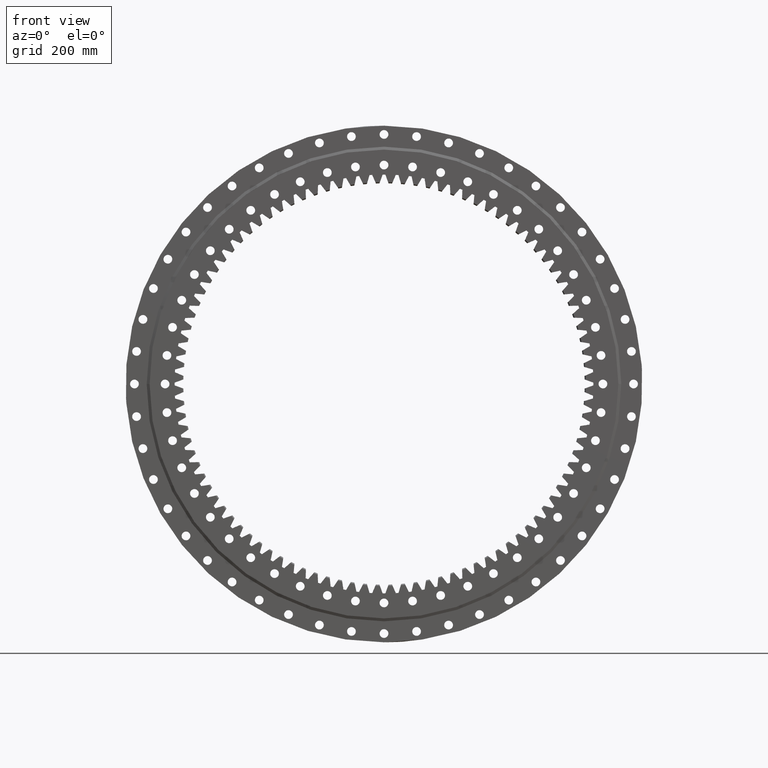
[diagram: clean part render]
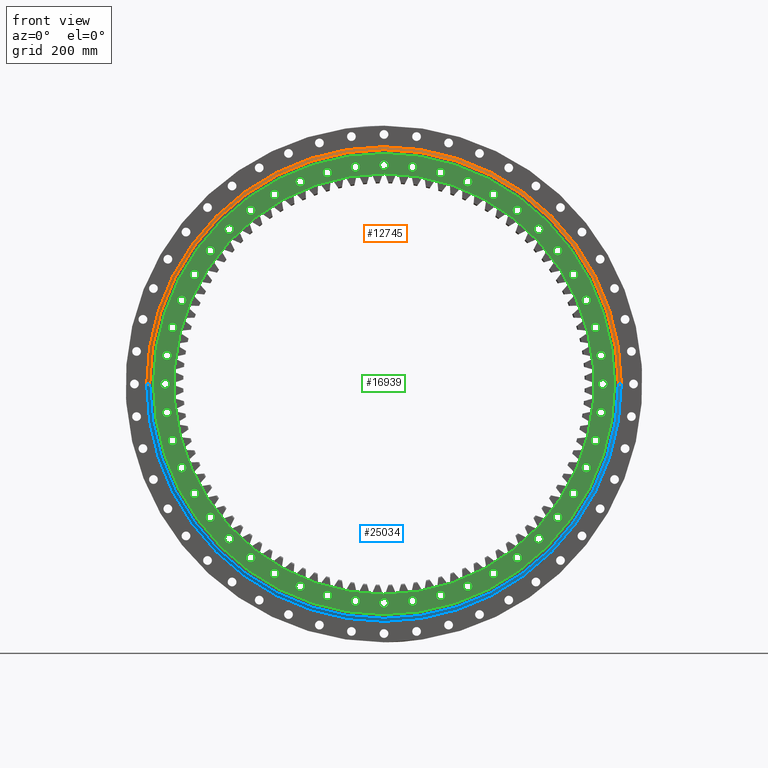
[diagram: same view with three faces highlighted in distinct colors, each labeled with its STEP entity id]
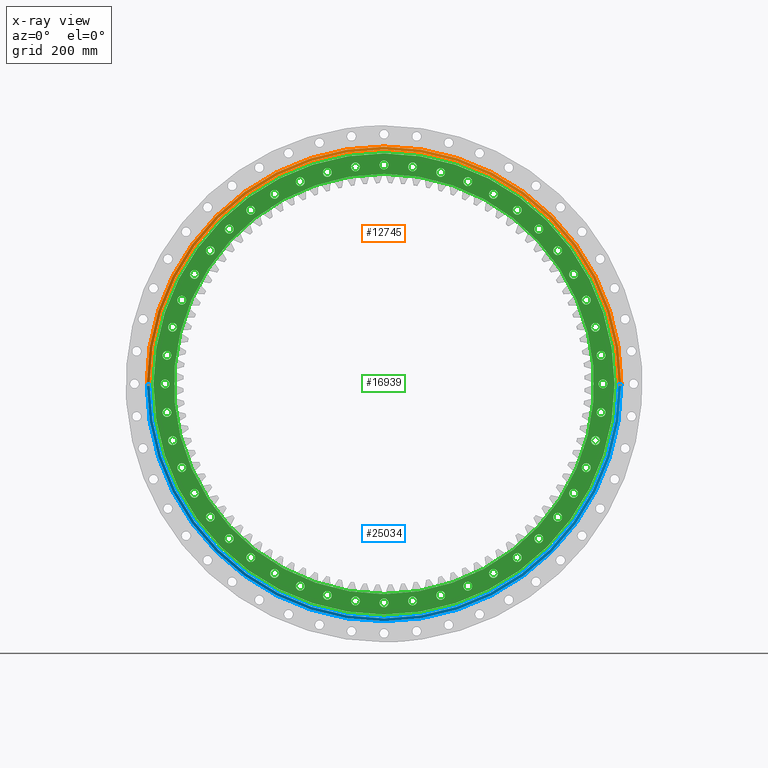
[diagram: x-ray of the same camera — body ghosted, the three highlighted faces saturated]
A machine part, front view with three faces highlighted in distinct colors.
The next image is the same camera in x-ray (body ghosted, the three faces saturated) — at least one of them is partly hidden behind the body in this view.
Their STEP definitions:

[orange] entity #12745 — the highlighted conical surface has half-angle 63.206 deg.
#53 = CARTESIAN_POINT ( 'NONE',  ( -803.0000000000001100, -55.04999999999986900, 0.0000000000000000000 ) ) ;
#994 = EDGE_CURVE ( 'NONE', #5629, #26983, #25047, .T. ) ;
#1266 = CARTESIAN_POINT ( 'NONE',  ( -1.300212179050019300E-014, -50.00000000000017100, 0.0000000000000000000 ) ) ;
#1628 = DIRECTION ( 'NONE',  ( 0.8926347946143788900, 0.4507805712802469600, 1.093162344032054000E-016 ) ) ;
#1980 = CARTESIAN_POINT ( 'NONE',  ( 803.0000000000001100, -55.05000000000016100, 9.833913797153247500E-014 ) ) ;
#2366 = CARTESIAN_POINT ( 'NONE',  ( -803.0000000000001100, -55.04999999999986900, 0.0000000000000000000 ) ) ;
#2783 = CIRCLE ( 'NONE', #9675, 803.0000000000001100 ) ;
#3685 = DIRECTION ( 'NONE',  ( -1.000000000000000000, 1.877683467231968000E-016, 0.0000000000000000000 ) ) ;
#4057 = VERTEX_POINT ( 'NONE', #2366 ) ;
#4517 = EDGE_CURVE ( 'NONE', #4057, #22538, #31392, .T. ) ;
#4751 = CONICAL_SURFACE ( 'NONE', #12086, 803.0000000000001100, 1.103156723031680100 ) ;
#4819 = VECTOR ( 'NONE', #14439, 1000.000000000000100 ) ;
#5629 = VERTEX_POINT ( 'NONE', #22776 ) ;
#8230 = DIRECTION ( 'NONE',  ( 1.836909530733565900E-016, 1.000000000000000000, -0.0000000000000000000 ) ) ;
#9274 = CIRCLE ( 'NONE', #10346, 813.0000000000001100 ) ;
#9675 = AXIS2_PLACEMENT_3D ( 'NONE', #22725, #8230, #25157 ) ;
#10346 = AXIS2_PLACEMENT_3D ( 'NONE', #1266, #18225, #3685 ) ;
#10548 = ORIENTED_EDGE ( 'NONE', *, *, #21753, .F. ) ;
#11979 = ORIENTED_EDGE ( 'NONE', *, *, #4517, .F. ) ;
#12086 = AXIS2_PLACEMENT_3D ( 'NONE', #20136, #23977, #28259 ) ;
#12745 = ADVANCED_FACE ( 'NONE', ( #18409 ), #4751, .T. ) ;
#14439 = DIRECTION ( 'NONE',  ( -0.8926347946143786700, 0.4507805712802473400, 0.0000000000000000000 ) ) ;
#17871 = VECTOR ( 'NONE', #1628, 999.9999999999998900 ) ;
#18225 = DIRECTION ( 'NONE',  ( 1.836909530733565900E-016, 1.000000000000000000, -0.0000000000000000000 ) ) ;
#18409 = FACE_OUTER_BOUND ( 'NONE', #29069, .T. ) ;
#19856 = EDGE_CURVE ( 'NONE', #4057, #5629, #2783, .T. ) ;
#20136 = CARTESIAN_POINT ( 'NONE',  ( -1.392976110352061400E-014, -55.05000000000001800, 0.0000000000000000000 ) ) ;
#21753 = EDGE_CURVE ( 'NONE', #22538, #26983, #9274, .T. ) ;
#22538 = VERTEX_POINT ( 'NONE', #24503 ) ;
#22725 = CARTESIAN_POINT ( 'NONE',  ( -1.392976110352061400E-014, -55.05000000000001800, 0.0000000000000000000 ) ) ;
#22776 = CARTESIAN_POINT ( 'NONE',  ( 803.0000000000001100, -55.05000000000016100, 9.895146137110616400E-014 ) ) ;
#23164 = ORIENTED_EDGE ( 'NONE', *, *, #994, .T. ) ;
#23977 = DIRECTION ( 'NONE',  ( 1.836909530733565900E-016, 1.000000000000000000, -0.0000000000000000000 ) ) ;
#24351 = ORIENTED_EDGE ( 'NONE', *, *, #19856, .T. ) ;
#24503 = CARTESIAN_POINT ( 'NONE',  ( -813.0000000000001100, -50.00000000000001400, 0.0000000000000000000 ) ) ;
#25047 = LINE ( 'NONE', #1980, #17871 ) ;
#25157 = DIRECTION ( 'NONE',  ( -1.000000000000000000, 1.814654694670632400E-016, 0.0000000000000000000 ) ) ;
#26983 = VERTEX_POINT ( 'NONE', #30984 ) ;
#28259 = DIRECTION ( 'NONE',  ( -1.000000000000000000, 1.814654694670632400E-016, 0.0000000000000000000 ) ) ;
#29069 = EDGE_LOOP ( 'NONE', ( #24351, #23164, #10548, #11979 ) ) ;
#30984 = CARTESIAN_POINT ( 'NONE',  ( 813.0000000000001100, -50.00000000000032000, 9.956378477067982700E-014 ) ) ;
#31392 = LINE ( 'NONE', #53, #4819 ) ;

[blue] entity #25034 — the highlighted conical surface has half-angle 63.206 deg.
#53 = CARTESIAN_POINT ( 'NONE',  ( -803.0000000000001100, -55.04999999999986900, 0.0000000000000000000 ) ) ;
#994 = EDGE_CURVE ( 'NONE', #5629, #26983, #25047, .T. ) ;
#1037 = DIRECTION ( 'NONE',  ( -1.000000000000000000, 1.814654694670632400E-016, 0.0000000000000000000 ) ) ;
#1628 = DIRECTION ( 'NONE',  ( 0.8926347946143788900, 0.4507805712802469600, 1.093162344032054000E-016 ) ) ;
#1980 = CARTESIAN_POINT ( 'NONE',  ( 803.0000000000001100, -55.05000000000016100, 9.833913797153247500E-014 ) ) ;
#2080 = DIRECTION ( 'NONE',  ( -1.000000000000000000, 1.877683467231968000E-016, 0.0000000000000000000 ) ) ;
#2366 = CARTESIAN_POINT ( 'NONE',  ( -803.0000000000001100, -55.04999999999986900, 0.0000000000000000000 ) ) ;
#2456 = DIRECTION ( 'NONE',  ( 1.836909530733565900E-016, 1.000000000000000000, -0.0000000000000000000 ) ) ;
#2947 = ORIENTED_EDGE ( 'NONE', *, *, #10310, .T. ) ;
#3471 = CARTESIAN_POINT ( 'NONE',  ( -1.300212179050019300E-014, -50.00000000000017100, 0.0000000000000000000 ) ) ;
#4057 = VERTEX_POINT ( 'NONE', #2366 ) ;
#4517 = EDGE_CURVE ( 'NONE', #4057, #22538, #31392, .T. ) ;
#4819 = VECTOR ( 'NONE', #14439, 1000.000000000000100 ) ;
#5629 = VERTEX_POINT ( 'NONE', #22776 ) ;
#5820 = DIRECTION ( 'NONE',  ( 1.836909530733565900E-016, 1.000000000000000000, -0.0000000000000000000 ) ) ;
#6033 = DIRECTION ( 'NONE',  ( -1.000000000000000000, 1.814654694670632400E-016, 0.0000000000000000000 ) ) ;
#6136 = CARTESIAN_POINT ( 'NONE',  ( -1.392976110352061400E-014, -55.05000000000001800, 0.0000000000000000000 ) ) ;
#9463 = CIRCLE ( 'NONE', #13841, 803.0000000000001100 ) ;
#10310 = EDGE_CURVE ( 'NONE', #5629, #4057, #9463, .T. ) ;
#13299 = ORIENTED_EDGE ( 'NONE', *, *, #4517, .T. ) ;
#13841 = AXIS2_PLACEMENT_3D ( 'NONE', #6136, #5820, #6033 ) ;
#14439 = DIRECTION ( 'NONE',  ( -0.8926347946143786700, 0.4507805712802473400, 0.0000000000000000000 ) ) ;
#14538 = ORIENTED_EDGE ( 'NONE', *, *, #16175, .F. ) ;
#15574 = CARTESIAN_POINT ( 'NONE',  ( -1.392976110352061400E-014, -55.05000000000001800, 0.0000000000000000000 ) ) ;
#16175 = EDGE_CURVE ( 'NONE', #26983, #22538, #23013, .T. ) ;
#17871 = VECTOR ( 'NONE', #1628, 999.9999999999998900 ) ;
#18115 = DIRECTION ( 'NONE',  ( 1.836909530733565900E-016, 1.000000000000000000, -0.0000000000000000000 ) ) ;
#18420 = EDGE_LOOP ( 'NONE', ( #25182, #2947, #13299, #14538 ) ) ;
#20940 = AXIS2_PLACEMENT_3D ( 'NONE', #15574, #18115, #1037 ) ;
#22538 = VERTEX_POINT ( 'NONE', #24503 ) ;
#22776 = CARTESIAN_POINT ( 'NONE',  ( 803.0000000000001100, -55.05000000000016100, 9.895146137110616400E-014 ) ) ;
#23013 = CIRCLE ( 'NONE', #29479, 813.0000000000001100 ) ;
#24503 = CARTESIAN_POINT ( 'NONE',  ( -813.0000000000001100, -50.00000000000001400, 0.0000000000000000000 ) ) ;
#25034 = ADVANCED_FACE ( 'NONE', ( #28318 ), #26794, .T. ) ;
#25047 = LINE ( 'NONE', #1980, #17871 ) ;
#25182 = ORIENTED_EDGE ( 'NONE', *, *, #994, .F. ) ;
#26794 = CONICAL_SURFACE ( 'NONE', #20940, 803.0000000000001100, 1.103156723031680100 ) ;
#26983 = VERTEX_POINT ( 'NONE', #30984 ) ;
#28318 = FACE_OUTER_BOUND ( 'NONE', #18420, .T. ) ;
#29479 = AXIS2_PLACEMENT_3D ( 'NONE', #3471, #2456, #2080 ) ;
#30984 = CARTESIAN_POINT ( 'NONE',  ( 813.0000000000001100, -50.00000000000032000, 9.956378477067982700E-014 ) ) ;
#31392 = LINE ( 'NONE', #53, #4819 ) ;

[green] entity #16939 — the highlighted planar face has unit normal (0, 1, -0).
#3 = VERTEX_POINT ( 'NONE', #12728 ) ;
#18 = CARTESIAN_POINT ( 'NONE',  ( 5.545662449571557400E-012, -74.99999999999997200, -735.0000000000000000 ) ) ;
#63 = AXIS2_PLACEMENT_3D ( 'NONE', #22168, #22105, #22101 ) ;
#85 = CIRCLE ( 'NONE', #30664, 14.99999999999997900 ) ;
#97 = DIRECTION ( 'NONE',  ( 0.8660254037844359300, 0.0000000000000000000, -0.5000000000000045500 ) ) ;
#131 = DIRECTION ( 'NONE',  ( -7.038473828917530800E-015, 0.0000000000000000000, -1.000000000000000000 ) ) ;
#141 = AXIS2_PLACEMENT_3D ( 'NONE', #17683, #3146, #20109 ) ;
#198 = DIRECTION ( 'NONE',  ( -7.914688832368751900E-017, -1.000000000000000000, 6.617654413443253200E-017 ) ) ;
#270 = DIRECTION ( 'NONE',  ( -7.914688832368751900E-017, -1.000000000000000000, 6.617654413443253200E-017 ) ) ;
#284 = AXIS2_PLACEMENT_3D ( 'NONE', #410, #17368, #2831 ) ;
#288 = VERTEX_POINT ( 'NONE', #1679 ) ;
#303 = CARTESIAN_POINT ( 'NONE',  ( 5.539883101782857500E-012, -74.99999999999997200, -750.0000000000000000 ) ) ;
#395 = VERTEX_POINT ( 'NONE', #30993 ) ;
#410 = CARTESIAN_POINT ( 'NONE',  ( -649.5190528383300300, -74.99999999999982900, 374.9999999999982400 ) ) ;
#424 = VERTEX_POINT ( 'NONE', #10692 ) ;
#436 = DIRECTION ( 'NONE',  ( -0.9238795325112907400, 0.0000000000000000000, -0.3826834323650801800 ) ) ;
#472 = DIRECTION ( 'NONE',  ( -0.4999999999999901700, 0.0000000000000000000, 0.8660254037844442600 ) ) ;
#494 = DIRECTION ( 'NONE',  ( -7.914688832368751900E-017, -1.000000000000000000, 6.617654413443253200E-017 ) ) ;
#527 = CARTESIAN_POINT ( 'NONE',  ( -692.9096493834639400, -74.99999999999988600, -287.0125742738202900 ) ) ;
#535 = VERTEX_POINT ( 'NONE', #14480 ) ;
#625 = ORIENTED_EDGE ( 'NONE', *, *, #11790, .F. ) ;
#637 = CIRCLE ( 'NONE', #6757, 14.99999999999998000 ) ;
#649 = CARTESIAN_POINT ( 'NONE',  ( -287.0125742738179000, -74.99999999999984400, 707.9096493834648500 ) ) ;
#657 = CIRCLE ( 'NONE', #3885, 15.00000000000003000 ) ;
#660 = CARTESIAN_POINT ( 'NONE',  ( -530.3300858899118600, -74.99999999999984400, 530.3300858899094700 ) ) ;
#669 = FACE_BOUND ( 'NONE', #25518, .T. ) ;
#693 = EDGE_CURVE ( 'NONE', #21278, #20615, #17523, .T. ) ;
#698 = VERTEX_POINT ( 'NONE', #17169 ) ;
#717 = DIRECTION ( 'NONE',  ( 0.9238795325112880700, 0.0000000000000000000, 0.3826834323650865100 ) ) ;
#730 = AXIS2_PLACEMENT_3D ( 'NONE', #14798, #270, #17240 ) ;
#741 = CARTESIAN_POINT ( 'NONE',  ( 724.4443697167990900, -74.99999999999997200, 179.1142838268989100 ) ) ;
#748 = VERTEX_POINT ( 'NONE', #14016 ) ;
#757 = ORIENTED_EDGE ( 'NONE', *, *, #31205, .F. ) ;
#811 = AXIS2_PLACEMENT_3D ( 'NONE', #7036, #23954, #9475 ) ;
#849 = CARTESIAN_POINT ( 'NONE',  ( -287.0125742738179000, -74.99999999999984400, 692.9096493834648500 ) ) ;
#898 = CARTESIAN_POINT ( 'NONE',  ( 724.4443697167990900, -74.99999999999997200, 194.1142838268989100 ) ) ;
#911 = CARTESIAN_POINT ( 'NONE',  ( 649.5190528383244600, -74.99999999999994300, 375.0000000000078400 ) ) ;
#942 = CARTESIAN_POINT ( 'NONE',  ( -1.078897714329611000E-011, -74.99999999999987200, 750.0000000000000000 ) ) ;
#946 = AXIS2_PLACEMENT_3D ( 'NONE', #12156, #12076, #11973 ) ;
#949 = CIRCLE ( 'NONE', #26676, 15.00000000000000700 ) ;
#963 = DIRECTION ( 'NONE',  ( 0.9659258262890693100, 0.0000000000000000000, 0.2588190451025165200 ) ) ;
#965 = CIRCLE ( 'NONE', #8635, 15.00000000000000500 ) ;
#967 = DIRECTION ( 'NONE',  ( -7.914688832368751900E-017, -1.000000000000000000, 6.617654413443253200E-017 ) ) ;
#991 = CARTESIAN_POINT ( 'NONE',  ( -194.1142838268913200, -74.99999999999985800, 724.4443697168010200 ) ) ;
#1011 = CARTESIAN_POINT ( 'NONE',  ( -649.5190528383269600, -74.99999999999990100, -390.0000000000033000 ) ) ;
#1017 = ORIENTED_EDGE ( 'NONE', *, *, #1364, .F. ) ;
#1053 = DIRECTION ( 'NONE',  ( -7.914688832368751900E-017, -1.000000000000000000, 6.617654413443253200E-017 ) ) ;
#1078 = EDGE_LOOP ( 'NONE', ( #26895, #21984 ) ) ;
#1121 = CARTESIAN_POINT ( 'NONE',  ( 456.5710717565457300, -75.00000000000000000, -580.0150052184222900 ) ) ;
#1276 = EDGE_CURVE ( 'NONE', #2131, #15050, #23127, .T. ) ;
#1315 = VERTEX_POINT ( 'NONE', #16151 ) ;
#1330 = EDGE_CURVE ( 'NONE', #8081, #15425, #9535, .T. ) ;
#1364 = EDGE_CURVE ( 'NONE', #17643, #31026, #14465, .T. ) ;
#1399 = VERTEX_POINT ( 'NONE', #10596 ) ;
#1421 = FACE_BOUND ( 'NONE', #22118, .T. ) ;
#1436 = CARTESIAN_POINT ( 'NONE',  ( 287.0125742738230200, -75.00000000000000000, -677.9096493834626900 ) ) ;
#1474 = AXIS2_PLACEMENT_3D ( 'NONE', #5968, #5906, #5809 ) ;
#1518 = DIRECTION ( 'NONE',  ( -7.914688832368751900E-017, -1.000000000000000000, 6.617654413443253200E-017 ) ) ;
#1532 = CIRCLE ( 'NONE', #6318, 15.00000000000000700 ) ;
#1544 = DIRECTION ( 'NONE',  ( 0.2588190451025148000, 0.0000000000000000000, -0.9659258262890699800 ) ) ;
#1595 = AXIS2_PLACEMENT_3D ( 'NONE', #15903, #18041, #16372 ) ;
#1679 = CARTESIAN_POINT ( 'NONE',  ( -724.4443697168003400, -74.99999999999987200, -209.1142838268938000 ) ) ;
#1706 = ORIENTED_EDGE ( 'NONE', *, *, #20029, .F. ) ;
#1758 = DIRECTION ( 'NONE',  ( -0.3826834323650986100, 0.0000000000000000000, -0.9238795325112830700 ) ) ;
#1796 = CARTESIAN_POINT ( 'NONE',  ( 743.5836460303567000, -74.99999999999997200, 82.89464416504702600 ) ) ;
#1805 = VERTEX_POINT ( 'NONE', #29082 ) ;
#1858 = VERTEX_POINT ( 'NONE', #19397 ) ;
#1872 = DIRECTION ( 'NONE',  ( -7.914688832368751900E-017, -1.000000000000000000, 6.617654413443253200E-017 ) ) ;
#1899 = DIRECTION ( 'NONE',  ( 0.9659258262890693100, 0.0000000000000000000, 0.2588190451025165200 ) ) ;
#1989 = DIRECTION ( 'NONE',  ( -0.4999999999999901700, 0.0000000000000000000, 0.8660254037844442600 ) ) ;
#2112 = EDGE_CURVE ( 'NONE', #31026, #17643, #4585, .T. ) ;
#2131 = VERTEX_POINT ( 'NONE', #8744 ) ;
#2149 = AXIS2_PLACEMENT_3D ( 'NONE', #16764, #15893, #15759 ) ;
#2189 = FACE_BOUND ( 'NONE', #27383, .T. ) ;
#2232 = EDGE_CURVE ( 'NONE', #28862, #25272, #13693, .T. ) ;
#2239 = DIRECTION ( 'NONE',  ( 0.9238795325112844100, 0.0000000000000000000, -0.3826834323650953900 ) ) ;
#2270 = CARTESIAN_POINT ( 'NONE',  ( -97.89464416503341200, -74.99999999999995700, -743.5836460303585200 ) ) ;
#2279 = CARTESIAN_POINT ( 'NONE',  ( -1.078897714329611000E-011, -74.99999999999987200, 750.0000000000000000 ) ) ;
#2291 = VERTEX_POINT ( 'NONE', #6568 ) ;
#2364 = ORIENTED_EDGE ( 'NONE', *, *, #4264, .F. ) ;
#2410 = VERTEX_POINT ( 'NONE', #4116 ) ;
#2467 = CARTESIAN_POINT ( 'NONE',  ( 595.0150052184208100, -74.99999999999992900, 441.5710717565477800 ) ) ;
#2494 = AXIS2_PLACEMENT_3D ( 'NONE', #527, #494, #436 ) ;
#2495 = EDGE_LOOP ( 'NONE', ( #21544, #27965 ) ) ;
#2531 = ORIENTED_EDGE ( 'NONE', *, *, #2112, .F. ) ;
#2550 = FACE_BOUND ( 'NONE', #9641, .T. ) ;
#2582 = CARTESIAN_POINT ( 'NONE',  ( 649.5190528383244600, -74.99999999999994300, 375.0000000000078400 ) ) ;
#2600 = VERTEX_POINT ( 'NONE', #11455 ) ;
#2639 = ORIENTED_EDGE ( 'NONE', *, *, #15482, .F. ) ;
#2719 = CARTESIAN_POINT ( 'NONE',  ( -456.5710717565418700, -74.99999999999984400, 595.0150052184253600 ) ) ;
#2747 = EDGE_LOOP ( 'NONE', ( #7833, #18063 ) ) ;
#2831 = DIRECTION ( 'NONE',  ( -0.8660254037844328200, 0.0000000000000000000, 0.5000000000000101000 ) ) ;
#2843 = DIRECTION ( 'NONE',  ( 0.7933533402912347200, 0.0000000000000000000, 0.6087614290087212100 ) ) ;
#2858 = DIRECTION ( 'NONE',  ( -7.914688832368751900E-017, -1.000000000000000000, 6.617654413443253200E-017 ) ) ;
#2913 = DIRECTION ( 'NONE',  ( -7.914688832368751900E-017, -1.000000000000000000, 6.617654413443253200E-017 ) ) ;
#2944 = CARTESIAN_POINT ( 'NONE',  ( -1.078670010024307200E-011, -74.99999999999987200, 735.0000000000000000 ) ) ;
#2965 = EDGE_LOOP ( 'NONE', ( #27263, #8714 ) ) ;
#3029 = CARTESIAN_POINT ( 'NONE',  ( -97.89464416503953700, -74.99999999999985800, 758.5836460303576100 ) ) ;
#3055 = EDGE_CURVE ( 'NONE', #1805, #19516, #19704, .T. ) ;
#3098 = DIRECTION ( 'NONE',  ( -0.7071067811865364700, 0.0000000000000000000, 0.7071067811865586700 ) ) ;
#3102 = DIRECTION ( 'NONE',  ( -7.038473828917530800E-015, 0.0000000000000000000, -1.000000000000000000 ) ) ;
#3134 = EDGE_CURVE ( 'NONE', #6331, #25031, #7600, .T. ) ;
#3146 = DIRECTION ( 'NONE',  ( -7.914688832368751900E-017, -1.000000000000000000, 6.617654413443253200E-017 ) ) ;
#3170 = EDGE_CURVE ( 'NONE', #9935, #22549, #18186, .T. ) ;
#3183 = CIRCLE ( 'NONE', #14729, 790.0000000000000000 ) ;
#3192 = DIRECTION ( 'NONE',  ( -7.914688832368751900E-017, -1.000000000000000000, 6.617654413443253200E-017 ) ) ;
#3209 = CARTESIAN_POINT ( 'NONE',  ( 595.0150052184208100, -74.99999999999992900, 456.5710717565478400 ) ) ;
#3220 = CARTESIAN_POINT ( 'NONE',  ( 375.0000000000055700, -74.99999999999998600, -634.5190528383258200 ) ) ;
#3268 = DIRECTION ( 'NONE',  ( -0.3826834323650770100, 0.0000000000000000000, 0.9238795325112920700 ) ) ;
#3279 = CARTESIAN_POINT ( 'NONE',  ( 97.89464416502821100, -74.99999999999988600, 758.5836460303592000 ) ) ;
#3302 = FACE_BOUND ( 'NONE', #17866, .T. ) ;
#3309 = EDGE_CURVE ( 'NONE', #28785, #22260, #3755, .T. ) ;
#3317 = ORIENTED_EDGE ( 'NONE', *, *, #16811, .F. ) ;
#3329 = CARTESIAN_POINT ( 'NONE',  ( -750.0000000000000000, -74.99999999999987200, 14.99999999999706400 ) ) ;
#3338 = DIRECTION ( 'NONE',  ( 0.8660254037844392600, 0.0000000000000000000, 0.4999999999999990000 ) ) ;
#3374 = DIRECTION ( 'NONE',  ( 5.551115123120728400E-017, 0.0000000000000000000, 1.000000000000000000 ) ) ;
#3392 = ORIENTED_EDGE ( 'NONE', *, *, #11087, .F. ) ;
#3399 = DIRECTION ( 'NONE',  ( -1.000000000000000000, 0.0000000000000000000, 1.052995516776064100E-014 ) ) ;
#3406 = DIRECTION ( 'NONE',  ( -7.914688832368751900E-017, -1.000000000000000000, 6.617654413443253200E-017 ) ) ;
#3424 = DIRECTION ( 'NONE',  ( -0.2588190451025079200, 0.0000000000000000000, 0.9659258262890717500 ) ) ;
#3441 = CARTESIAN_POINT ( 'NONE',  ( -750.0000000000000000, -74.99999999999987200, -2.922244873464701800E-012 ) ) ;
#3446 = DIRECTION ( 'NONE',  ( -0.7071067811865364700, 0.0000000000000000000, 0.7071067811865586700 ) ) ;
#3527 = DIRECTION ( 'NONE',  ( -7.914688832368751900E-017, -1.000000000000000000, 6.617654413443253200E-017 ) ) ;
#3550 = CARTESIAN_POINT ( 'NONE',  ( -530.3300858899118600, -74.99999999999984400, 530.3300858899094700 ) ) ;
#3591 = EDGE_CURVE ( 'NONE', #25031, #6331, #9063, .T. ) ;
#3636 = CIRCLE ( 'NONE', #9417, 14.99999999999994100 ) ;
#3657 = ORIENTED_EDGE ( 'NONE', *, *, #8912, .F. ) ;
#3677 = AXIS2_PLACEMENT_3D ( 'NONE', #3935, #20879, #6368 ) ;
#3686 = ORIENTED_EDGE ( 'NONE', *, *, #7916, .F. ) ;
#3691 = CARTESIAN_POINT ( 'NONE',  ( 530.3300858899154900, -75.00000000000000000, -545.3300858899057200 ) ) ;
#3755 = CIRCLE ( 'NONE', #21073, 14.99999999999995900 ) ;
#3793 = ORIENTED_EDGE ( 'NONE', *, *, #12980, .F. ) ;
#3803 = DIRECTION ( 'NONE',  ( -7.914688832368751900E-017, -1.000000000000000000, 6.617654413443253200E-017 ) ) ;
#3828 = CARTESIAN_POINT ( 'NONE',  ( -375.0000000000010200, -74.99999999999985800, 649.5190528383283200 ) ) ;
#3885 = AXIS2_PLACEMENT_3D ( 'NONE', #898, #967, #963 ) ;
#3886 = ORIENTED_EDGE ( 'NONE', *, *, #24512, .F. ) ;
#3935 = CARTESIAN_POINT ( 'NONE',  ( 456.5710717565457300, -75.00000000000000000, -595.0150052184222900 ) ) ;
#3999 = AXIS2_PLACEMENT_3D ( 'NONE', #30665, #30622, #30405 ) ;
#4045 = ORIENTED_EDGE ( 'NONE', *, *, #3134, .F. ) ;
#4060 = FACE_BOUND ( 'NONE', #25101, .T. ) ;
#4116 = CARTESIAN_POINT ( 'NONE',  ( 194.1142838268963800, -74.99999999999998600, -739.4443697167997700 ) ) ;
#4134 = CARTESIAN_POINT ( 'NONE',  ( 595.0150052184307000, -75.00000000000000000, -441.5710717565348200 ) ) ;
#4235 = CARTESIAN_POINT ( 'NONE',  ( 692.9096493834681500, -75.00000000000000000, -272.0125742738104600 ) ) ;
#4253 = VERTEX_POINT ( 'NONE', #4755 ) ;
#4264 = EDGE_CURVE ( 'NONE', #22245, #4357, #29492, .T. ) ;
#4314 = CARTESIAN_POINT ( 'NONE',  ( 375.0000000000055700, -74.99999999999998600, -649.5190528383258200 ) ) ;
#4357 = VERTEX_POINT ( 'NONE', #3220 ) ;
#4390 = CARTESIAN_POINT ( 'NONE',  ( 374.9999999999914700, -74.99999999999991500, 634.5190528383340100 ) ) ;
#4410 = DIRECTION ( 'NONE',  ( 0.4999999999999929500, 0.0000000000000000000, -0.8660254037844427000 ) ) ;
#4424 = EDGE_CURVE ( 'NONE', #12150, #11163, #657, .T. ) ;
#4440 = DIRECTION ( 'NONE',  ( -7.914688832368751900E-017, -1.000000000000000000, 6.617654413443251900E-017 ) ) ;
#4498 = DIRECTION ( 'NONE',  ( -7.914688832368751900E-017, -1.000000000000000000, 6.617654413443253200E-017 ) ) ;
#4510 = VERTEX_POINT ( 'NONE', #2944 ) ;
#4562 = ORIENTED_EDGE ( 'NONE', *, *, #18185, .F. ) ;
#4573 = CARTESIAN_POINT ( 'NONE',  ( -724.4443697168003400, -74.99999999999987200, -194.1142838268938000 ) ) ;
#4585 = CIRCLE ( 'NONE', #3999, 14.99999999999998800 ) ;
#4702 = DIRECTION ( 'NONE',  ( -0.1305261922200590700, 0.0000000000000000000, -0.9914448613738093800 ) ) ;
#4712 = DIRECTION ( 'NONE',  ( 5.551115123120728400E-017, 0.0000000000000000000, 1.000000000000000000 ) ) ;
#4755 = CARTESIAN_POINT ( 'NONE',  ( 194.1142838268805500, -74.99999999999988600, 739.4443697168038600 ) ) ;
#4757 = ORIENTED_EDGE ( 'NONE', *, *, #14153, .F. ) ;
#4823 = AXIS2_PLACEMENT_3D ( 'NONE', #22037, #7555, #24456 ) ;
#4835 = FACE_BOUND ( 'NONE', #7382, .T. ) ;
#4854 = ORIENTED_EDGE ( 'NONE', *, *, #28757, .F. ) ;
#4911 = VERTEX_POINT ( 'NONE', #17564 ) ;
#4928 = CARTESIAN_POINT ( 'NONE',  ( -649.5190528383300300, -74.99999999999982900, 389.9999999999982400 ) ) ;
#4952 = DIRECTION ( 'NONE',  ( -7.914688832368751900E-017, -1.000000000000000000, 6.617654413443253200E-017 ) ) ;
#4957 = ORIENTED_EDGE ( 'NONE', *, *, #25202, .F. ) ;
#5025 = DIRECTION ( 'NONE',  ( 0.8660254037844392600, 0.0000000000000000000, 0.4999999999999990000 ) ) ;
#5034 = DIRECTION ( 'NONE',  ( -7.914688832368751900E-017, -1.000000000000000000, 6.617654413443251900E-017 ) ) ;
#5062 = CIRCLE ( 'NONE', #12178, 14.99999999999994500 ) ;
#5077 = EDGE_CURVE ( 'NONE', #26781, #15969, #28284, .T. ) ;
#5101 = DIRECTION ( 'NONE',  ( 0.7071067811865438000, 0.0000000000000000000, -0.7071067811865512400 ) ) ;
#5103 = CARTESIAN_POINT ( 'NONE',  ( -750.0000000000000000, -74.99999999999987200, -15.00000000000291000 ) ) ;
#5119 = CARTESIAN_POINT ( 'NONE',  ( -194.1142838268913200, -74.99999999999985800, 724.4443697168010200 ) ) ;
#5123 = CARTESIAN_POINT ( 'NONE',  ( -97.89464416503953700, -74.99999999999985800, 743.5836460303576100 ) ) ;
#5145 = DIRECTION ( 'NONE',  ( -0.6087614290087130000, 0.0000000000000000000, 0.7933533402912410500 ) ) ;
#5200 = DIRECTION ( 'NONE',  ( -7.914688832368751900E-017, -1.000000000000000000, 6.617654413443253200E-017 ) ) ;
#5220 = CARTESIAN_POINT ( 'NONE',  ( -595.0150052184274000, -74.99999999999984400, 441.5710717565393100 ) ) ;
#5295 = CIRCLE ( 'NONE', #22505, 14.99999999999997200 ) ;
#5313 = ORIENTED_EDGE ( 'NONE', *, *, #30304, .F. ) ;
#5356 = DIRECTION ( 'NONE',  ( 0.2588190451025218500, 0.0000000000000000000, 0.9659258262890679800 ) ) ;
#5365 = ORIENTED_EDGE ( 'NONE', *, *, #15993, .F. ) ;
#5447 = AXIS2_PLACEMENT_3D ( 'NONE', #27638, #27599, #27592 ) ;
#5499 = CARTESIAN_POINT ( 'NONE',  ( 194.1142838268805500, -74.99999999999988600, 724.4443697168038600 ) ) ;
#5512 = CIRCLE ( 'NONE', #10425, 14.99999999999998000 ) ;
#5535 = ORIENTED_EDGE ( 'NONE', *, *, #26152, .F. ) ;
#5582 = FACE_BOUND ( 'NONE', #28567, .T. ) ;
#5666 = ORIENTED_EDGE ( 'NONE', *, *, #21835, .F. ) ;
#5672 = EDGE_CURVE ( 'NONE', #18312, #10362, #26736, .T. ) ;
#5699 = ORIENTED_EDGE ( 'NONE', *, *, #7760, .F. ) ;
#5723 = CARTESIAN_POINT ( 'NONE',  ( 530.3300858899154900, -75.00000000000000000, -530.3300858899057200 ) ) ;
#5770 = ORIENTED_EDGE ( 'NONE', *, *, #19084, .F. ) ;
#5809 = DIRECTION ( 'NONE',  ( 0.7933533402912329400, 0.0000000000000000000, -0.6087614290087235400 ) ) ;
#5813 = EDGE_LOOP ( 'NONE', ( #11462, #27335 ) ) ;
#5823 = EDGE_CURVE ( 'NONE', #5992, #29788, #10832, .T. ) ;
#5906 = DIRECTION ( 'NONE',  ( -7.914688832368751900E-017, -1.000000000000000000, 6.617654413443251900E-017 ) ) ;
#5929 = CIRCLE ( 'NONE', #1474, 14.99999999999999300 ) ;
#5966 = CARTESIAN_POINT ( 'NONE',  ( -374.9999999999960200, -74.99999999999992900, -634.5190528383312800 ) ) ;
#5968 = CARTESIAN_POINT ( 'NONE',  ( 595.0150052184307000, -75.00000000000000000, -456.5710717565348200 ) ) ;
#5992 = VERTEX_POINT ( 'NONE', #9136 ) ;
#6011 = CARTESIAN_POINT ( 'NONE',  ( 530.3300858899039000, -74.99999999999992900, 545.3300858899175400 ) ) ;
#6102 = CARTESIAN_POINT ( 'NONE',  ( 692.9096493834616700, -74.99999999999995700, 287.0125742738254100 ) ) ;
#6178 = DIRECTION ( 'NONE',  ( -7.914688832368751900E-017, -1.000000000000000000, 6.617654413443253200E-017 ) ) ;
#6258 = VERTEX_POINT ( 'NONE', #7164 ) ;
#6318 = AXIS2_PLACEMENT_3D ( 'NONE', #12427, #29363, #14866 ) ;
#6331 = VERTEX_POINT ( 'NONE', #26515 ) ;
#6352 = FACE_BOUND ( 'NONE', #14215, .T. ) ;
#6368 = DIRECTION ( 'NONE',  ( 0.6087614290087153300, 0.0000000000000000000, -0.7933533402912392700 ) ) ;
#6446 = CARTESIAN_POINT ( 'NONE',  ( -743.5836460303572700, -74.99999999999987200, -97.89464416504215200 ) ) ;
#6518 = CIRCLE ( 'NONE', #811, 14.99999999999993600 ) ;
#6533 = CARTESIAN_POINT ( 'NONE',  ( 724.4443697168034100, -74.99999999999998600, -194.1142838268831100 ) ) ;
#6568 = CARTESIAN_POINT ( 'NONE',  ( 194.1142838268805500, -74.99999999999988600, 709.4443697168037500 ) ) ;
#6643 = DIRECTION ( 'NONE',  ( 0.2588190451025148000, 0.0000000000000000000, -0.9659258262890699800 ) ) ;
#6686 = CARTESIAN_POINT ( 'NONE',  ( 194.1142838268963800, -74.99999999999998600, -724.4443697167996600 ) ) ;
#6715 = CIRCLE ( 'NONE', #30282, 15.00000000000000500 ) ;
#6742 = CARTESIAN_POINT ( 'NONE',  ( -649.5190528383269600, -74.99999999999990100, -375.0000000000033000 ) ) ;
#6757 = AXIS2_PLACEMENT_3D ( 'NONE', #2719, #19678, #5145 ) ;
#6797 = VERTEX_POINT ( 'NONE', #29824 ) ;
#6818 = VERTEX_POINT ( 'NONE', #28999 ) ;
#6855 = EDGE_CURVE ( 'NONE', #4911, #16191, #23644, .T. ) ;
#7036 = CARTESIAN_POINT ( 'NONE',  ( 194.1142838268805500, -74.99999999999988600, 724.4443697168038600 ) ) ;
#7040 = ORIENTED_EDGE ( 'NONE', *, *, #1330, .F. ) ;
#7112 = AXIS2_PLACEMENT_3D ( 'NONE', #27404, #27368, #27331 ) ;
#7146 = FACE_BOUND ( 'NONE', #13745, .T. ) ;
#7164 = CARTESIAN_POINT ( 'NONE',  ( -1.078814447602764300E-011, -74.99999999999987200, 765.0000000000000000 ) ) ;
#7211 = ORIENTED_EDGE ( 'NONE', *, *, #18683, .F. ) ;
#7219 = CIRCLE ( 'NONE', #21513, 15.00000000000004400 ) ;
#7225 = AXIS2_PLACEMENT_3D ( 'NONE', #5119, #22077, #7596 ) ;
#7281 = CARTESIAN_POINT ( 'NONE',  ( 97.89464416504439700, -74.99999999999998600, -728.5836460303569300 ) ) ;
#7282 = CIRCLE ( 'NONE', #26198, 14.99999999999994100 ) ;
#7348 = CIRCLE ( 'NONE', #10684, 15.00000000000001400 ) ;
#7360 = CARTESIAN_POINT ( 'NONE',  ( -97.89464416503953700, -74.99999999999985800, 728.5836460303576100 ) ) ;
#7382 = EDGE_LOOP ( 'NONE', ( #30424, #15659 ) ) ;
#7492 = CARTESIAN_POINT ( 'NONE',  ( 692.9096493834616700, -74.99999999999995700, 272.0125742738254100 ) ) ;
#7516 = VERTEX_POINT ( 'NONE', #28860 ) ;
#7555 = DIRECTION ( 'NONE',  ( -7.914688832368751900E-017, -1.000000000000000000, 6.617654413443253200E-017 ) ) ;
#7596 = DIRECTION ( 'NONE',  ( -0.2588190451025079200, 0.0000000000000000000, 0.9659258262890717500 ) ) ;
#7600 = CIRCLE ( 'NONE', #29815, 14.99999999999995900 ) ;
#7602 = DIRECTION ( 'NONE',  ( -0.1305261922200380800, 0.0000000000000000000, 0.9914448613738121600 ) ) ;
#7661 = ORIENTED_EDGE ( 'NONE', *, *, #25151, .F. ) ;
#7702 = CARTESIAN_POINT ( 'NONE',  ( -595.0150052184274000, -74.99999999999984400, 456.5710717565393100 ) ) ;
#7760 = EDGE_CURVE ( 'NONE', #26242, #28649, #13707, .T. ) ;
#7768 = CIRCLE ( 'NONE', #19001, 14.99999999999995200 ) ;
#7773 = CIRCLE ( 'NONE', #23222, 15.00000000000001400 ) ;
#7787 = CARTESIAN_POINT ( 'NONE',  ( -530.3300858899118600, -74.99999999999984400, 545.3300858899094700 ) ) ;
#7795 = CIRCLE ( 'NONE', #18577, 14.99999999999998800 ) ;
#7833 = ORIENTED_EDGE ( 'NONE', *, *, #14765, .F. ) ;
#7907 = FACE_BOUND ( 'NONE', #13016, .T. ) ;
#7916 = EDGE_CURVE ( 'NONE', #748, #27053, #22751, .T. ) ;
#8012 = EDGE_CURVE ( 'NONE', #20105, #18985, #26929, .T. ) ;
#8065 = CARTESIAN_POINT ( 'NONE',  ( -724.4443697168003400, -74.99999999999987200, -179.1142838268938200 ) ) ;
#8081 = VERTEX_POINT ( 'NONE', #25589 ) ;
#8182 = DIRECTION ( 'NONE',  ( -0.8660254037844328200, 0.0000000000000000000, 0.5000000000000101000 ) ) ;
#8199 = ORIENTED_EDGE ( 'NONE', *, *, #29604, .F. ) ;
#8234 = CARTESIAN_POINT ( 'NONE',  ( 649.5190528383327500, -75.00000000000001400, -374.9999999999938000 ) ) ;
#8247 = FACE_OUTER_BOUND ( 'NONE', #2495, .T. ) ;
#8254 = CIRCLE ( 'NONE', #12029, 15.00000000000001400 ) ;
#8283 = CIRCLE ( 'NONE', #8344, 14.99999999999996400 ) ;
#8310 = ORIENTED_EDGE ( 'NONE', *, *, #25816, .T. ) ;
#8324 = VERTEX_POINT ( 'NONE', #14201 ) ;
#8344 = AXIS2_PLACEMENT_3D ( 'NONE', #20891, #20843, #20803 ) ;
#8346 = DIRECTION ( 'NONE',  ( -7.914688832368751900E-017, -1.000000000000000000, 6.617654413443253200E-017 ) ) ;
#8353 = CARTESIAN_POINT ( 'NONE',  ( -649.5190528383300300, -74.99999999999982900, 374.9999999999982400 ) ) ;
#8363 = ORIENTED_EDGE ( 'NONE', *, *, #18509, .F. ) ;
#8369 = ORIENTED_EDGE ( 'NONE', *, *, #29623, .F. ) ;
#8378 = CARTESIAN_POINT ( 'NONE',  ( -5.936016624276558100E-015, -74.99999999999992900, 7.008539237159725500E-015 ) ) ;
#8495 = EDGE_LOOP ( 'NONE', ( #18792, #13882 ) ) ;
#8525 = CIRCLE ( 'NONE', #10075, 720.0000000000000000 ) ;
#8532 = EDGE_CURVE ( 'NONE', #16967, #2410, #9884, .T. ) ;
#8562 = CARTESIAN_POINT ( 'NONE',  ( 375.0000000000055700, -74.99999999999998600, -664.5190528383258200 ) ) ;
#8634 = EDGE_CURVE ( 'NONE', #15548, #27854, #20462, .T. ) ;
#8635 = AXIS2_PLACEMENT_3D ( 'NONE', #29759, #15249, #717 ) ;
#8654 = FACE_BOUND ( 'NONE', #1078, .T. ) ;
#8662 = CARTESIAN_POINT ( 'NONE',  ( -595.0150052184274000, -74.99999999999984400, 456.5710717565393100 ) ) ;
#8714 = ORIENTED_EDGE ( 'NONE', *, *, #25739, .F. ) ;
#8716 = VERTEX_POINT ( 'NONE', #649 ) ;
#8744 = CARTESIAN_POINT ( 'NONE',  ( -692.9096493834661000, -74.99999999999984400, 302.0125742738149500 ) ) ;
#8790 = EDGE_LOOP ( 'NONE', ( #14671, #9745 ) ) ;
#8819 = EDGE_LOOP ( 'NONE', ( #10286, #16746 ) ) ;
#8849 = EDGE_LOOP ( 'NONE', ( #22805, #24338 ) ) ;
#8901 = DIRECTION ( 'NONE',  ( -0.9914448613738117100, 0.0000000000000000000, -0.1305261922200417200 ) ) ;
#8909 = EDGE_CURVE ( 'NONE', #25272, #28862, #12134, .T. ) ;
#8912 = EDGE_CURVE ( 'NONE', #27854, #15548, #31465, .T. ) ;
#8916 = AXIS2_PLACEMENT_3D ( 'NONE', #25958, #25952, #25933 ) ;
#8973 = DIRECTION ( 'NONE',  ( 0.9659258262890670900, 0.0000000000000000000, -0.2588190451025252900 ) ) ;
#9013 = FACE_BOUND ( 'NONE', #25898, .T. ) ;
#9063 = CIRCLE ( 'NONE', #19322, 14.99999999999995900 ) ;
#9136 = CARTESIAN_POINT ( 'NONE',  ( -1.461411887879927600E-013, -74.99999999999998600, -790.0000000000000000 ) ) ;
#9142 = CARTESIAN_POINT ( 'NONE',  ( 649.5190528383244600, -74.99999999999994300, 390.0000000000078400 ) ) ;
#9158 = DIRECTION ( 'NONE',  ( -1.000000000000000000, 0.0000000000000000000, 1.052995516776064100E-014 ) ) ;
#9168 = DIRECTION ( 'NONE',  ( 7.914688832368751900E-017, 1.000000000000000000, -6.617654413443253200E-017 ) ) ;
#9173 = ORIENTED_EDGE ( 'NONE', *, *, #28755, .F. ) ;
#9192 = DIRECTION ( 'NONE',  ( -0.8660254037844427000, 0.0000000000000000000, -0.4999999999999929500 ) ) ;
#9205 = AXIS2_PLACEMENT_3D ( 'NONE', #29706, #29734, #29794 ) ;
#9223 = CARTESIAN_POINT ( 'NONE',  ( -743.5836460303580700, -74.99999999999985800, 97.89464416503635400 ) ) ;
#9229 = DIRECTION ( 'NONE',  ( 0.9238795325112880700, 0.0000000000000000000, 0.3826834323650865100 ) ) ;
#9314 = AXIS2_PLACEMENT_3D ( 'NONE', #29495, #14999, #472 ) ;
#9417 = AXIS2_PLACEMENT_3D ( 'NONE', #849, #17811, #3268 ) ;
#9420 = VERTEX_POINT ( 'NONE', #15964 ) ;
#9424 = FACE_BOUND ( 'NONE', #11645, .T. ) ;
#9474 = DIRECTION ( 'NONE',  ( -7.914688832368751900E-017, -1.000000000000000000, 6.617654413443253200E-017 ) ) ;
#9475 = DIRECTION ( 'NONE',  ( 0.2588190451025218500, 0.0000000000000000000, 0.9659258262890679800 ) ) ;
#9535 = CIRCLE ( 'NONE', #25914, 14.99999999999999300 ) ;
#9609 = CARTESIAN_POINT ( 'NONE',  ( -692.9096493834661000, -74.99999999999984400, 287.0125742738149500 ) ) ;
#9622 = EDGE_LOOP ( 'NONE', ( #13247, #8310 ) ) ;
#9632 = AXIS2_PLACEMENT_3D ( 'NONE', #13673, #13584, #13587 ) ;
#9641 = EDGE_LOOP ( 'NONE', ( #15824, #3686 ) ) ;
#9670 = AXIS2_PLACEMENT_3D ( 'NONE', #14093, #31029, #16506 ) ;
#9698 = CIRCLE ( 'NONE', #14322, 15.00000000000000200 ) ;
#9745 = ORIENTED_EDGE ( 'NONE', *, *, #25892, .F. ) ;
#9771 = EDGE_CURVE ( 'NONE', #19270, #22492, #7219, .T. ) ;
#9786 = FACE_BOUND ( 'NONE', #11413, .T. ) ;
#9802 = ORIENTED_EDGE ( 'NONE', *, *, #6855, .F. ) ;
#9884 = CIRCLE ( 'NONE', #29421, 15.00000000000002100 ) ;
#9909 = ORIENTED_EDGE ( 'NONE', *, *, #5672, .F. ) ;
#9913 = ORIENTED_EDGE ( 'NONE', *, *, #22968, .F. ) ;
#9926 = CARTESIAN_POINT ( 'NONE',  ( -743.5836460303572700, -74.99999999999987200, -97.89464416504215200 ) ) ;
#9935 = VERTEX_POINT ( 'NONE', #4235 ) ;
#9965 = ORIENTED_EDGE ( 'NONE', *, *, #11672, .F. ) ;
#10055 = CARTESIAN_POINT ( 'NONE',  ( -750.0000000000000000, -74.99999999999987200, -2.922244873464701800E-012 ) ) ;
#10075 = AXIS2_PLACEMENT_3D ( 'NONE', #23651, #9168, #26079 ) ;
#10080 = AXIS2_PLACEMENT_3D ( 'NONE', #911, #17880, #3338 ) ;
#10126 = DIRECTION ( 'NONE',  ( -0.7933533402912266200, 0.0000000000000000000, 0.6087614290087318700 ) ) ;
#10135 = CARTESIAN_POINT ( 'NONE',  ( -595.0150052184237700, -74.99999999999991500, -471.5710717565440300 ) ) ;
#10207 = DIRECTION ( 'NONE',  ( -0.7071067811865512400, 0.0000000000000000000, -0.7071067811865438000 ) ) ;
#10276 = EDGE_CURVE ( 'NONE', #17727, #15516, #21572, .T. ) ;
#10286 = ORIENTED_EDGE ( 'NONE', *, *, #27788, .F. ) ;
#10301 = CARTESIAN_POINT ( 'NONE',  ( -456.5710717565418700, -74.99999999999984400, 580.0150052184253600 ) ) ;
#10362 = VERTEX_POINT ( 'NONE', #31468 ) ;
#10425 = AXIS2_PLACEMENT_3D ( 'NONE', #28824, #14332, #31293 ) ;
#10455 = CARTESIAN_POINT ( 'NONE',  ( -692.9096493834661000, -74.99999999999984400, 272.0125742738149500 ) ) ;
#10480 = CARTESIAN_POINT ( 'NONE',  ( -456.5710717565369200, -74.99999999999991500, -595.0150052184291100 ) ) ;
#10503 = DIRECTION ( 'NONE',  ( -7.914688832368751900E-017, -1.000000000000000000, 6.617654413443251900E-017 ) ) ;
#10520 = DIRECTION ( 'NONE',  ( -7.914688832368751900E-017, -1.000000000000000000, 6.617654413443251900E-017 ) ) ;
#10532 = FACE_BOUND ( 'NONE', #22055, .T. ) ;
#10563 = EDGE_CURVE ( 'NONE', #19516, #1805, #8283, .T. ) ;
#10573 = CARTESIAN_POINT ( 'NONE',  ( 595.0150052184208100, -74.99999999999992900, 471.5710717565478400 ) ) ;
#10596 = CARTESIAN_POINT ( 'NONE',  ( -724.4443697168018200, -74.99999999999985800, 209.1142838268881700 ) ) ;
#10602 = CARTESIAN_POINT ( 'NONE',  ( -287.0125742738128500, -74.99999999999994300, -692.9096493834669000 ) ) ;
#10616 = CARTESIAN_POINT ( 'NONE',  ( -530.3300858899076500, -74.99999999999991500, -530.3300858899136800 ) ) ;
#10617 = ORIENTED_EDGE ( 'NONE', *, *, #10276, .F. ) ;
#10684 = AXIS2_PLACEMENT_3D ( 'NONE', #2279, #19250, #4712 ) ;
#10686 = DIRECTION ( 'NONE',  ( 0.8660254037844359300, 0.0000000000000000000, -0.5000000000000045500 ) ) ;
#10692 = CARTESIAN_POINT ( 'NONE',  ( -595.0150052184237700, -74.99999999999991500, -441.5710717565439700 ) ) ;
#10715 = EDGE_CURVE ( 'NONE', #27053, #748, #25308, .T. ) ;
#10718 = EDGE_CURVE ( 'NONE', #11956, #22280, #18144, .T. ) ;
#10722 = EDGE_LOOP ( 'NONE', ( #5770, #2364 ) ) ;
#10741 = ORIENTED_EDGE ( 'NONE', *, *, #17631, .F. ) ;
#10769 = DIRECTION ( 'NONE',  ( 0.1305261922200444700, 0.0000000000000000000, -0.9914448613738112700 ) ) ;
#10804 = CARTESIAN_POINT ( 'NONE',  ( 456.5710717565327700, -74.99999999999992900, 610.0150052184322900 ) ) ;
#10817 = DIRECTION ( 'NONE',  ( -7.914688832368751900E-017, -1.000000000000000000, 6.617654413443253200E-017 ) ) ;
#10824 = DIRECTION ( 'NONE',  ( -5.551115123125783900E-017, -5.782411586589357400E-017, -1.000000000000000000 ) ) ;
#10832 = CIRCLE ( 'NONE', #17726, 790.0000000000000000 ) ;
#10868 = CARTESIAN_POINT ( 'NONE',  ( -374.9999999999960200, -74.99999999999992900, -664.5190528383313900 ) ) ;
#10876 = DIRECTION ( 'NONE',  ( -0.9914448613738089400, 0.0000000000000000000, 0.1305261922200627000 ) ) ;
#10885 = VERTEX_POINT ( 'NONE', #11387 ) ;
#10905 = DIRECTION ( 'NONE',  ( -7.914688832368751900E-017, -1.000000000000000000, 6.617654413443253200E-017 ) ) ;
#10950 = AXIS2_PLACEMENT_3D ( 'NONE', #3209, #2913, #2843 ) ;
#11017 = DIRECTION ( 'NONE',  ( -7.914688832368751900E-017, -1.000000000000000000, 6.617654413443253200E-017 ) ) ;
#11063 = CIRCLE ( 'NONE', #4823, 14.99999999999996300 ) ;
#11083 = CARTESIAN_POINT ( 'NONE',  ( 97.89464416504441100, -74.99999999999998600, -743.5836460303569300 ) ) ;
#11087 = EDGE_CURVE ( 'NONE', #16067, #10885, #16216, .T. ) ;
#11104 = DIRECTION ( 'NONE',  ( -0.7933533402912266200, 0.0000000000000000000, 0.6087614290087318700 ) ) ;
#11105 = AXIS2_PLACEMENT_3D ( 'NONE', #19047, #4498, #21455 ) ;
#11113 = VERTEX_POINT ( 'NONE', #3029 ) ;
#11163 = VERTEX_POINT ( 'NONE', #741 ) ;
#11168 = CARTESIAN_POINT ( 'NONE',  ( -194.1142838268913200, -74.99999999999985800, 709.4443697168010200 ) ) ;
#11180 = EDGE_CURVE ( 'NONE', #30247, #8324, #8254, .T. ) ;
#11223 = VERTEX_POINT ( 'NONE', #8065 ) ;
#11303 = FACE_BOUND ( 'NONE', #28182, .T. ) ;
#11387 = CARTESIAN_POINT ( 'NONE',  ( -530.3300858899118600, -74.99999999999984400, 515.3300858899094700 ) ) ;
#11413 = EDGE_LOOP ( 'NONE', ( #5535, #625 ) ) ;
#11455 = CARTESIAN_POINT ( 'NONE',  ( -595.0150052184274000, -74.99999999999984400, 471.5710717565393700 ) ) ;
#11462 = ORIENTED_EDGE ( 'NONE', *, *, #19309, .F. ) ;
#11502 = EDGE_LOOP ( 'NONE', ( #18997, #8369 ) ) ;
#11522 = EDGE_CURVE ( 'NONE', #22549, #9935, #12809, .T. ) ;
#11534 = CIRCLE ( 'NONE', #23047, 15.00000000000001400 ) ;
#11598 = DIRECTION ( 'NONE',  ( -7.914688832368751900E-017, -1.000000000000000000, 6.617654413443251900E-017 ) ) ;
#11626 = CIRCLE ( 'NONE', #284, 15.00000000000004400 ) ;
#11644 = VERTEX_POINT ( 'NONE', #27930 ) ;
#11645 = EDGE_LOOP ( 'NONE', ( #15518, #28392 ) ) ;
#11666 = DIRECTION ( 'NONE',  ( -0.9914448613738089400, 0.0000000000000000000, 0.1305261922200627000 ) ) ;
#11672 = EDGE_CURVE ( 'NONE', #2410, #16967, #21863, .T. ) ;
#11790 = EDGE_CURVE ( 'NONE', #27981, #29168, #6715, .T. ) ;
#11830 = DIRECTION ( 'NONE',  ( -7.914688832368751900E-017, -1.000000000000000000, 6.617654413443253200E-017 ) ) ;
#11841 = ORIENTED_EDGE ( 'NONE', *, *, #20941, .F. ) ;
#11843 = DIRECTION ( 'NONE',  ( 7.914688832368751900E-017, 1.000000000000000000, -6.617654413443253200E-017 ) ) ;
#11879 = CIRCLE ( 'NONE', #27732, 14.99999999999995200 ) ;
#11899 = DIRECTION ( 'NONE',  ( -5.551115123125783900E-017, -7.026728003956687400E-017, -1.000000000000000000 ) ) ;
#11934 = CARTESIAN_POINT ( 'NONE',  ( -5.936016624276558100E-015, -74.99999999999992900, 3.272195764536966400E-015 ) ) ;
#11941 = CARTESIAN_POINT ( 'NONE',  ( 743.5836460303567000, -74.99999999999997200, 97.89464416504701200 ) ) ;
#11956 = VERTEX_POINT ( 'NONE', #29770 ) ;
#11973 = DIRECTION ( 'NONE',  ( 0.7071067811865512400, 0.0000000000000000000, 0.7071067811865438000 ) ) ;
#11983 = CARTESIAN_POINT ( 'NONE',  ( -375.0000000000010200, -74.99999999999985800, 634.5190528383283200 ) ) ;
#12009 = CARTESIAN_POINT ( 'NONE',  ( 649.5190528383327500, -75.00000000000001400, -359.9999999999937500 ) ) ;
#12029 = AXIS2_PLACEMENT_3D ( 'NONE', #303, #198, #131 ) ;
#12040 = DIRECTION ( 'NONE',  ( -0.9238795325112830700, 0.0000000000000000000, 0.3826834323650986100 ) ) ;
#12071 = FACE_BOUND ( 'NONE', #17224, .T. ) ;
#12076 = DIRECTION ( 'NONE',  ( -7.914688832368751900E-017, -1.000000000000000000, 6.617654413443253200E-017 ) ) ;
#12078 = VERTEX_POINT ( 'NONE', #10301 ) ;
#12134 = CIRCLE ( 'NONE', #5447, 14.99999999999998800 ) ;
#12141 = CIRCLE ( 'NONE', #21900, 14.99999999999998400 ) ;
#12150 = VERTEX_POINT ( 'NONE', #27217 ) ;
#12156 = CARTESIAN_POINT ( 'NONE',  ( 530.3300858899039000, -74.99999999999992900, 530.3300858899174300 ) ) ;
#12178 = AXIS2_PLACEMENT_3D ( 'NONE', #25832, #25791, #25741 ) ;
#12267 = AXIS2_PLACEMENT_3D ( 'NONE', #30825, #16298, #1758 ) ;
#12359 = CARTESIAN_POINT ( 'NONE',  ( -287.0125742738128500, -74.99999999999994300, -677.9096493834669000 ) ) ;
#12361 = DIRECTION ( 'NONE',  ( -0.9914448613738117100, 0.0000000000000000000, -0.1305261922200417200 ) ) ;
#12427 = CARTESIAN_POINT ( 'NONE',  ( -724.4443697168003400, -74.99999999999987200, -194.1142838268938000 ) ) ;
#12520 = VERTEX_POINT ( 'NONE', #17667 ) ;
#12569 = CIRCLE ( 'NONE', #28858, 14.99999999999998900 ) ;
#12692 = CIRCLE ( 'NONE', #25441, 15.00000000000002700 ) ;
#12728 = CARTESIAN_POINT ( 'NONE',  ( -375.0000000000010200, -74.99999999999985800, 664.5190528383283200 ) ) ;
#12777 = AXIS2_PLACEMENT_3D ( 'NONE', #23219, #5034, #31380 ) ;
#12809 = CIRCLE ( 'NONE', #17905, 14.99999999999994700 ) ;
#12836 = FACE_BOUND ( 'NONE', #8819, .T. ) ;
#12837 = AXIS2_PLACEMENT_3D ( 'NONE', #3441, #3406, #3399 ) ;
#12859 = CARTESIAN_POINT ( 'NONE',  ( -595.0150052184237700, -74.99999999999991500, -456.5710717565439700 ) ) ;
#12951 = DIRECTION ( 'NONE',  ( -0.6087614290087257600, 0.0000000000000000000, -0.7933533402912311700 ) ) ;
#12967 = EDGE_CURVE ( 'NONE', #4253, #2291, #13877, .T. ) ;
#12980 = EDGE_CURVE ( 'NONE', #288, #11223, #949, .T. ) ;
#13016 = EDGE_LOOP ( 'NONE', ( #9913, #29983 ) ) ;
#13037 = EDGE_LOOP ( 'NONE', ( #23784, #20377 ) ) ;
#13043 = CIRCLE ( 'NONE', #16588, 14.99999999999996800 ) ;
#13054 = DIRECTION ( 'NONE',  ( -0.3826834323650986100, 0.0000000000000000000, -0.9238795325112830700 ) ) ;
#13131 = AXIS2_PLACEMENT_3D ( 'NONE', #8234, #25162, #10686 ) ;
#13134 = ORIENTED_EDGE ( 'NONE', *, *, #25065, .F. ) ;
#13240 = AXIS2_PLACEMENT_3D ( 'NONE', #11083, #10905, #10769 ) ;
#13247 = ORIENTED_EDGE ( 'NONE', *, *, #26960, .T. ) ;
#13339 = CARTESIAN_POINT ( 'NONE',  ( 97.89464416504441100, -74.99999999999998600, -743.5836460303569300 ) ) ;
#13528 = DIRECTION ( 'NONE',  ( -7.914688832368751900E-017, -1.000000000000000000, 6.617654413443253200E-017 ) ) ;
#13579 = FACE_BOUND ( 'NONE', #20616, .T. ) ;
#13584 = DIRECTION ( 'NONE',  ( -7.914688832368751900E-017, -1.000000000000000000, 6.617654413443253200E-017 ) ) ;
#13587 = DIRECTION ( 'NONE',  ( -0.8660254037844427000, 0.0000000000000000000, -0.4999999999999929500 ) ) ;
#13608 = CIRCLE ( 'NONE', #13854, 15.00000000000002100 ) ;
#13673 = CARTESIAN_POINT ( 'NONE',  ( -649.5190528383269600, -74.99999999999990100, -375.0000000000033000 ) ) ;
#13693 = CIRCLE ( 'NONE', #25110, 14.99999999999998800 ) ;
#13707 = CIRCLE ( 'NONE', #23072, 14.99999999999998800 ) ;
#13729 = VERTEX_POINT ( 'NONE', #5220 ) ;
#13740 = EDGE_CURVE ( 'NONE', #3, #18064, #14224, .T. ) ;
#13744 = CIRCLE ( 'NONE', #15785, 14.99999999999998400 ) ;
#13745 = EDGE_LOOP ( 'NONE', ( #16716, #5313 ) ) ;
#13748 = EDGE_CURVE ( 'NONE', #8324, #30247, #7773, .T. ) ;
#13809 = EDGE_LOOP ( 'NONE', ( #10741, #7040 ) ) ;
#13820 = DIRECTION ( 'NONE',  ( 7.914688832368751900E-017, 1.000000000000000000, -6.617654413443253200E-017 ) ) ;
#13849 = DIRECTION ( 'NONE',  ( 0.7933533402912329400, 0.0000000000000000000, -0.6087614290087235400 ) ) ;
#13854 = AXIS2_PLACEMENT_3D ( 'NONE', #25592, #25558, #25446 ) ;
#13877 = CIRCLE ( 'NONE', #18574, 14.99999999999993600 ) ;
#13882 = ORIENTED_EDGE ( 'NONE', *, *, #11522, .F. ) ;
#13947 = DIRECTION ( 'NONE',  ( -7.914688832368751900E-017, -1.000000000000000000, 6.617654413443251900E-017 ) ) ;
#14016 = CARTESIAN_POINT ( 'NONE',  ( 287.0125742738080700, -74.99999999999990100, 677.9096493834690600 ) ) ;
#14039 = CARTESIAN_POINT ( 'NONE',  ( 287.0125742738230200, -75.00000000000000000, -692.9096493834626900 ) ) ;
#14063 = CIRCLE ( 'NONE', #14428, 15.00000000000002100 ) ;
#14093 = CARTESIAN_POINT ( 'NONE',  ( 743.5836460303588600, -74.99999999999998600, -97.89464416503081200 ) ) ;
#14094 = CIRCLE ( 'NONE', #30466, 14.99999999999996100 ) ;
#14107 = CARTESIAN_POINT ( 'NONE',  ( 595.0150052184307000, -75.00000000000000000, -456.5710717565348200 ) ) ;
#14153 = EDGE_CURVE ( 'NONE', #26124, #1858, #29339, .T. ) ;
#14174 = EDGE_CURVE ( 'NONE', #7516, #21554, #5062, .T. ) ;
#14201 = CARTESIAN_POINT ( 'NONE',  ( 5.542160144835898500E-012, -74.99999999999997200, -765.0000000000000000 ) ) ;
#14215 = EDGE_LOOP ( 'NONE', ( #23915, #11841 ) ) ;
#14224 = CIRCLE ( 'NONE', #15133, 14.99999999999997500 ) ;
#14310 = ORIENTED_EDGE ( 'NONE', *, *, #20257, .F. ) ;
#14322 = AXIS2_PLACEMENT_3D ( 'NONE', #6742, #23675, #9192 ) ;
#14332 = DIRECTION ( 'NONE',  ( -7.914688832368751900E-017, -1.000000000000000000, 6.617654413443251900E-017 ) ) ;
#14358 = FACE_BOUND ( 'NONE', #11502, .T. ) ;
#14369 = ORIENTED_EDGE ( 'NONE', *, *, #20191, .F. ) ;
#14379 = DIRECTION ( 'NONE',  ( 0.9914448613738108300, 0.0000000000000000000, 0.1305261922200481000 ) ) ;
#14428 = AXIS2_PLACEMENT_3D ( 'NONE', #5123, #22080, #7602 ) ;
#14465 = CIRCLE ( 'NONE', #946, 14.99999999999998800 ) ;
#14464 = DIRECTION ( 'NONE',  ( -7.914688832368751900E-017, -1.000000000000000000, 6.617654413443253200E-017 ) ) ;
#14480 = CARTESIAN_POINT ( 'NONE',  ( 750.0000000000000000, -74.99999999999998600, -14.99999999999181800 ) ) ;
#14513 = CARTESIAN_POINT ( 'NONE',  ( -287.0125742738128500, -74.99999999999994300, -707.9096493834669000 ) ) ;
#14547 = EDGE_LOOP ( 'NONE', ( #4562, #23890 ) ) ;
#14568 = CIRCLE ( 'NONE', #141, 15.00000000000002700 ) ;
#14571 = CARTESIAN_POINT ( 'NONE',  ( 287.0125742738080700, -74.99999999999990100, 707.9096493834691700 ) ) ;
#14612 = VERTEX_POINT ( 'NONE', #17972 ) ;
#14621 = DIRECTION ( 'NONE',  ( -7.914688832368753200E-017, -1.000000000000000000, 6.617654413443253200E-017 ) ) ;
#14671 = ORIENTED_EDGE ( 'NONE', *, *, #4424, .F. ) ;
#14699 = CIRCLE ( 'NONE', #30717, 15.00000000000004100 ) ;
#14707 = FACE_BOUND ( 'NONE', #17658, .T. ) ;
#14729 = AXIS2_PLACEMENT_3D ( 'NONE', #28292, #13820, #30765 ) ;
#14765 = EDGE_CURVE ( 'NONE', #19071, #535, #16417, .T. ) ;
#14798 = CARTESIAN_POINT ( 'NONE',  ( -374.9999999999960200, -74.99999999999992900, -649.5190528383313900 ) ) ;
#14866 = DIRECTION ( 'NONE',  ( -0.9659258262890708700, 0.0000000000000000000, -0.2588190451025113600 ) ) ;
#14936 = VERTEX_POINT ( 'NONE', #12359 ) ;
#14957 = VERTEX_POINT ( 'NONE', #12009 ) ;
#14999 = DIRECTION ( 'NONE',  ( -7.914688832368751900E-017, -1.000000000000000000, 6.617654413443253200E-017 ) ) ;
#15034 = CIRCLE ( 'NONE', #17540, 720.0000000000000000 ) ;
#15047 = DIRECTION ( 'NONE',  ( 1.000000000000000000, 0.0000000000000000000, -3.546992490074421600E-015 ) ) ;
#15050 = VERTEX_POINT ( 'NONE', #10455 ) ;
#15090 = DIRECTION ( 'NONE',  ( -7.914688832368751900E-017, -1.000000000000000000, 6.617654413443253200E-017 ) ) ;
#15099 = FACE_BOUND ( 'NONE', #27739, .T. ) ;
#15128 = CARTESIAN_POINT ( 'NONE',  ( 750.0000000000000000, -74.99999999999998600, 8.169393363349567100E-012 ) ) ;
#15133 = AXIS2_PLACEMENT_3D ( 'NONE', #3828, #3803, #1989 ) ;
#15135 = AXIS2_PLACEMENT_3D ( 'NONE', #16415, #1872, #18852 ) ;
#15238 = VERTEX_POINT ( 'NONE', #7281 ) ;
#15245 = VERTEX_POINT ( 'NONE', #7360 ) ;
#15249 = DIRECTION ( 'NONE',  ( -7.914688832368751900E-017, -1.000000000000000000, 6.617654413443253200E-017 ) ) ;
#15279 = DIRECTION ( 'NONE',  ( -0.7933533402912410500, 0.0000000000000000000, -0.6087614290087130000 ) ) ;
#15425 = VERTEX_POINT ( 'NONE', #4134 ) ;
#15437 = ORIENTED_EDGE ( 'NONE', *, *, #3591, .F. ) ;
#15440 = AXIS2_PLACEMENT_3D ( 'NONE', #10055, #9474, #9158 ) ;
#15456 = FACE_BOUND ( 'NONE', #30471, .T. ) ;
#15477 = AXIS2_PLACEMENT_3D ( 'NONE', #9223, #26131, #11666 ) ;
#15482 = EDGE_CURVE ( 'NONE', #15516, #17727, #26104, .T. ) ;
#15516 = VERTEX_POINT ( 'NONE', #3329 ) ;
#15518 = ORIENTED_EDGE ( 'NONE', *, *, #31179, .F. ) ;
#15544 = AXIS2_PLACEMENT_3D ( 'NONE', #991, #17959, #3424 ) ;
#15548 = VERTEX_POINT ( 'NONE', #2467 ) ;
#15586 = CARTESIAN_POINT ( 'NONE',  ( 750.0000000000000000, -74.99999999999998600, 8.169393363349567100E-012 ) ) ;
#15659 = ORIENTED_EDGE ( 'NONE', *, *, #2232, .F. ) ;
#15748 = DIRECTION ( 'NONE',  ( 0.1305261922200444700, 0.0000000000000000000, -0.9914448613738112700 ) ) ;
#15759 = DIRECTION ( 'NONE',  ( 0.6087614290087153300, 0.0000000000000000000, -0.7933533402912392700 ) ) ;
#15765 = EDGE_CURVE ( 'NONE', #15245, #11113, #13608, .T. ) ;
#15785 = AXIS2_PLACEMENT_3D ( 'NONE', #660, #17635, #3098 ) ;
#15824 = ORIENTED_EDGE ( 'NONE', *, *, #10715, .F. ) ;
#15856 = AXIS2_PLACEMENT_3D ( 'NONE', #4314, #4440, #4410 ) ;
#15888 = AXIS2_PLACEMENT_3D ( 'NONE', #15586, #1053, #18026 ) ;
#15893 = DIRECTION ( 'NONE',  ( -7.914688832368751900E-017, -1.000000000000000000, 6.617654413443253200E-017 ) ) ;
#15903 = CARTESIAN_POINT ( 'NONE',  ( 692.9096493834681500, -75.00000000000000000, -287.0125742738105100 ) ) ;
#15964 = CARTESIAN_POINT ( 'NONE',  ( -456.5710717565369200, -74.99999999999991500, -610.0150052184291100 ) ) ;
#15969 = VERTEX_POINT ( 'NONE', #10868 ) ;
#15993 = EDGE_CURVE ( 'NONE', #23937, #15238, #20385, .T. ) ;
#16029 = VERTEX_POINT ( 'NONE', #9142 ) ;
#16067 = VERTEX_POINT ( 'NONE', #7787 ) ;
#16145 = AXIS2_PLACEMENT_3D ( 'NONE', #13339, #30260, #15748 ) ;
#16151 = CARTESIAN_POINT ( 'NONE',  ( 743.5836460303567000, -74.99999999999997200, 112.8946441650470000 ) ) ;
#16191 = VERTEX_POINT ( 'NONE', #3279 ) ;
#16211 = FACE_BOUND ( 'NONE', #8790, .T. ) ;
#16216 = CIRCLE ( 'NONE', #30476, 14.99999999999998400 ) ;
#16298 = DIRECTION ( 'NONE',  ( -7.914688832368751900E-017, -1.000000000000000000, 6.617654413443253200E-017 ) ) ;
#16372 = DIRECTION ( 'NONE',  ( 0.9238795325112844100, 0.0000000000000000000, -0.3826834323650953900 ) ) ;
#16415 = CARTESIAN_POINT ( 'NONE',  ( -724.4443697168018200, -74.99999999999985800, 194.1142838268882000 ) ) ;
#16417 = CIRCLE ( 'NONE', #22709, 15.00000000000001400 ) ;
#16437 = DIRECTION ( 'NONE',  ( -7.914688832368751900E-017, -1.000000000000000000, 6.617654413443253200E-017 ) ) ;
#16454 = DIRECTION ( 'NONE',  ( 0.3826834323650834000, 0.0000000000000000000, -0.9238795325112894000 ) ) ;
#16506 = DIRECTION ( 'NONE',  ( 0.9914448613738098300, 0.0000000000000000000, -0.1305261922200554300 ) ) ;
#16588 = AXIS2_PLACEMENT_3D ( 'NONE', #10602, #27514, #13054 ) ;
#16602 = CARTESIAN_POINT ( 'NONE',  ( -1.334850133869639700E-013, -74.99999999999997200, -720.0000000000000000 ) ) ;
#16696 = ORIENTED_EDGE ( 'NONE', *, *, #13740, .F. ) ;
#16716 = ORIENTED_EDGE ( 'NONE', *, *, #17901, .F. ) ;
#16746 = ORIENTED_EDGE ( 'NONE', *, *, #19412, .F. ) ;
#16748 = DIRECTION ( 'NONE',  ( 0.3826834323650834000, 0.0000000000000000000, -0.9238795325112894000 ) ) ;
#16764 = CARTESIAN_POINT ( 'NONE',  ( 456.5710717565457300, -75.00000000000000000, -595.0150052184222900 ) ) ;
#16786 = DIRECTION ( 'NONE',  ( -7.914688832368751900E-017, -1.000000000000000000, 6.617654413443253200E-017 ) ) ;
#16792 = EDGE_LOOP ( 'NONE', ( #5699, #27312 ) ) ;
#16811 = EDGE_CURVE ( 'NONE', #16191, #4911, #18905, .T. ) ;
#16853 = CARTESIAN_POINT ( 'NONE',  ( 287.0125742738230200, -75.00000000000000000, -692.9096493834626900 ) ) ;
#16939 = ADVANCED_FACE ( 'NONE', ( #17388, #9424, #22297, #21530, #15099, #8654, #2189, #27205, #20750, #14358, #7907, #1421, #26445, #20009, #13579, #7146, #669, #25663, #19272, #12836, #6352, #31405, #24908, #18501, #12071, #5582, #30627, #24154, #17748, #11303, #4835, #29858, #23398, #16988, #10532, #4060, #29108, #22622, #16211, #9786, #3302, #28328, #21887, #15456, #9013, #2550, #27545, #21117, #14707, #8247 ), #19567, .F. ) ;
#16967 = VERTEX_POINT ( 'NONE', #18951 ) ;
#16978 = DIRECTION ( 'NONE',  ( 0.3826834323650896700, 0.0000000000000000000, 0.9238795325112868500 ) ) ;
#16988 = FACE_BOUND ( 'NONE', #8495, .T. ) ;
#17017 = DIRECTION ( 'NONE',  ( -0.9238795325112830700, 0.0000000000000000000, 0.3826834323650986100 ) ) ;
#17055 = DIRECTION ( 'NONE',  ( -7.914688832368751900E-017, -1.000000000000000000, 6.617654413443253200E-017 ) ) ;
#17066 = DIRECTION ( 'NONE',  ( -7.914688832368751900E-017, -1.000000000000000000, 6.617654413443251900E-017 ) ) ;
#17108 = CARTESIAN_POINT ( 'NONE',  ( 287.0125742738080700, -74.99999999999990100, 692.9096493834690600 ) ) ;
#17169 = CARTESIAN_POINT ( 'NONE',  ( -692.9096493834639400, -74.99999999999988600, -272.0125742738202900 ) ) ;
#17170 = CARTESIAN_POINT ( 'NONE',  ( -692.9096493834661000, -74.99999999999984400, 287.0125742738149500 ) ) ;
#17224 = EDGE_LOOP ( 'NONE', ( #22434, #28887 ) ) ;
#17230 = CARTESIAN_POINT ( 'NONE',  ( -194.1142838268856100, -74.99999999999995700, -724.4443697168025000 ) ) ;
#17240 = DIRECTION ( 'NONE',  ( -0.5000000000000073300, 0.0000000000000000000, -0.8660254037844343800 ) ) ;
#17258 = VERTEX_POINT ( 'NONE', #14513 ) ;
#17289 = ORIENTED_EDGE ( 'NONE', *, *, #27860, .F. ) ;
#17322 = AXIS2_PLACEMENT_3D ( 'NONE', #20842, #25646, #1544 ) ;
#17346 = CARTESIAN_POINT ( 'NONE',  ( 692.9096493834681500, -75.00000000000000000, -302.0125742738105100 ) ) ;
#17368 = DIRECTION ( 'NONE',  ( -7.914688832368751900E-017, -1.000000000000000000, 6.617654413443253200E-017 ) ) ;
#17388 = FACE_BOUND ( 'NONE', #9622, .T. ) ;
#17394 = CARTESIAN_POINT ( 'NONE',  ( -97.89464416503341200, -74.99999999999995700, -743.5836460303585200 ) ) ;
#17431 = CARTESIAN_POINT ( 'NONE',  ( 3.831352729003558400E-014, -74.99999999999987200, 790.0000000000000000 ) ) ;
#17523 = CIRCLE ( 'NONE', #2149, 15.00000000000001400 ) ;
#17540 = AXIS2_PLACEMENT_3D ( 'NONE', #8378, #25293, #10824 ) ;
#17545 = CIRCLE ( 'NONE', #26122, 15.00000000000004100 ) ;
#17564 = CARTESIAN_POINT ( 'NONE',  ( 97.89464416502821100, -74.99999999999988600, 728.5836460303592000 ) ) ;
#17631 = EDGE_CURVE ( 'NONE', #15425, #8081, #5929, .T. ) ;
#17635 = DIRECTION ( 'NONE',  ( -7.914688832368751900E-017, -1.000000000000000000, 6.617654413443253200E-017 ) ) ;
#17643 = VERTEX_POINT ( 'NONE', #6011 ) ;
#17658 = EDGE_LOOP ( 'NONE', ( #4854, #14369 ) ) ;
#17663 = EDGE_LOOP ( 'NONE', ( #19915, #17289 ) ) ;
#17667 = CARTESIAN_POINT ( 'NONE',  ( 649.5190528383327500, -75.00000000000001400, -389.9999999999938000 ) ) ;
#17678 = CARTESIAN_POINT ( 'NONE',  ( -724.4443697168018200, -74.99999999999985800, 179.1142838268882000 ) ) ;
#17683 = CARTESIAN_POINT ( 'NONE',  ( -456.5710717565369200, -74.99999999999991500, -595.0150052184291100 ) ) ;
#17726 = AXIS2_PLACEMENT_3D ( 'NONE', #11934, #11843, #11899 ) ;
#17727 = VERTEX_POINT ( 'NONE', #5103 ) ;
#17748 = FACE_BOUND ( 'NONE', #10722, .T. ) ;
#17809 = AXIS2_PLACEMENT_3D ( 'NONE', #17170, #17055, #17017 ) ;
#17811 = DIRECTION ( 'NONE',  ( -7.914688832368751900E-017, -1.000000000000000000, 6.617654413443253200E-017 ) ) ;
#17866 = EDGE_LOOP ( 'NONE', ( #14310, #27153 ) ) ;
#17880 = DIRECTION ( 'NONE',  ( -7.914688832368751900E-017, -1.000000000000000000, 6.617654413443253200E-017 ) ) ;
#17901 = EDGE_CURVE ( 'NONE', #698, #29982, #19211, .T. ) ;
#17905 = AXIS2_PLACEMENT_3D ( 'NONE', #23955, #28130, #2239 ) ;
#17912 = DIRECTION ( 'NONE',  ( -7.914688832368751900E-017, -1.000000000000000000, 6.617654413443253200E-017 ) ) ;
#17959 = DIRECTION ( 'NONE',  ( -7.914688832368751900E-017, -1.000000000000000000, 6.617654413443253200E-017 ) ) ;
#17972 = CARTESIAN_POINT ( 'NONE',  ( -743.5836460303572700, -74.99999999999987200, -82.89464416504216600 ) ) ;
#18026 = DIRECTION ( 'NONE',  ( 1.000000000000000000, 0.0000000000000000000, -3.546992490074421600E-015 ) ) ;
#18041 = DIRECTION ( 'NONE',  ( -7.914688832368753200E-017, -1.000000000000000000, 6.617654413443253200E-017 ) ) ;
#18063 = ORIENTED_EDGE ( 'NONE', *, *, #25794, .F. ) ;
#18064 = VERTEX_POINT ( 'NONE', #11983 ) ;
#18144 = CIRCLE ( 'NONE', #19719, 14.99999999999998400 ) ;
#18185 = EDGE_CURVE ( 'NONE', #22492, #19270, #11626, .T. ) ;
#18186 = CIRCLE ( 'NONE', #1595, 14.99999999999994700 ) ;
#18296 = EDGE_LOOP ( 'NONE', ( #29227, #24268 ) ) ;
#18298 = EDGE_LOOP ( 'NONE', ( #757, #21622 ) ) ;
#18312 = VERTEX_POINT ( 'NONE', #1011 ) ;
#18326 = CIRCLE ( 'NONE', #25884, 14.99999999999995000 ) ;
#18476 = VERTEX_POINT ( 'NONE', #28333 ) ;
#18501 = FACE_BOUND ( 'NONE', #5813, .T. ) ;
#18509 = EDGE_CURVE ( 'NONE', #10362, #18312, #9698, .T. ) ;
#18574 = AXIS2_PLACEMENT_3D ( 'NONE', #5499, #13528, #5356 ) ;
#18577 = AXIS2_PLACEMENT_3D ( 'NONE', #25013, #10520, #27446 ) ;
#18579 = CARTESIAN_POINT ( 'NONE',  ( 456.5710717565457300, -75.00000000000000000, -610.0150052184222900 ) ) ;
#18630 = ORIENTED_EDGE ( 'NONE', *, *, #3309, .F. ) ;
#18683 = EDGE_CURVE ( 'NONE', #28297, #20112, #30917, .T. ) ;
#18776 = CIRCLE ( 'NONE', #15544, 14.99999999999999300 ) ;
#18792 = ORIENTED_EDGE ( 'NONE', *, *, #3170, .F. ) ;
#18801 = AXIS2_PLACEMENT_3D ( 'NONE', #2582, #19556, #5025 ) ;
#18840 = EDGE_CURVE ( 'NONE', #28649, #26242, #7795, .T. ) ;
#18852 = DIRECTION ( 'NONE',  ( -0.9659258262890652000, 0.0000000000000000000, 0.2588190451025322300 ) ) ;
#18905 = CIRCLE ( 'NONE', #63, 14.99999999999994000 ) ;
#18951 = CARTESIAN_POINT ( 'NONE',  ( 194.1142838268963800, -74.99999999999998600, -709.4443697167996600 ) ) ;
#18985 = VERTEX_POINT ( 'NONE', #20676 ) ;
#18997 = ORIENTED_EDGE ( 'NONE', *, *, #1276, .F. ) ;
#19001 = AXIS2_PLACEMENT_3D ( 'NONE', #17394, #2858, #19828 ) ;
#19041 = EDGE_CURVE ( 'NONE', #29788, #5992, #3183, .T. ) ;
#19047 = CARTESIAN_POINT ( 'NONE',  ( -456.5710717565418700, -74.99999999999984400, 595.0150052184253600 ) ) ;
#19048 = CARTESIAN_POINT ( 'NONE',  ( 530.3300858899039000, -74.99999999999992900, 515.3300858899174300 ) ) ;
#19065 = VERTEX_POINT ( 'NONE', #1796 ) ;
#19071 = VERTEX_POINT ( 'NONE', #21194 ) ;
#19084 = EDGE_CURVE ( 'NONE', #4357, #22245, #26692, .T. ) ;
#19102 = EDGE_LOOP ( 'NONE', ( #23482, #5666 ) ) ;
#19211 = CIRCLE ( 'NONE', #2494, 14.99999999999996300 ) ;
#19242 = DIRECTION ( 'NONE',  ( -7.914688832368751900E-017, -1.000000000000000000, 6.617654413443253200E-017 ) ) ;
#19250 = DIRECTION ( 'NONE',  ( -7.914688832368751900E-017, -1.000000000000000000, 6.617654413443253200E-017 ) ) ;
#19270 = VERTEX_POINT ( 'NONE', #24459 ) ;
#19272 = FACE_BOUND ( 'NONE', #16792, .T. ) ;
#19309 = EDGE_CURVE ( 'NONE', #11644, #24001, #7768, .T. ) ;
#19322 = AXIS2_PLACEMENT_3D ( 'NONE', #20352, #20290, #20254 ) ;
#19397 = CARTESIAN_POINT ( 'NONE',  ( 724.4443697168034100, -74.99999999999998600, -179.1142838268831400 ) ) ;
#19412 = EDGE_CURVE ( 'NONE', #9420, #6818, #12692, .T. ) ;
#19417 = DIRECTION ( 'NONE',  ( -5.551115123125783900E-017, -6.617654413443253200E-017, -1.000000000000000000 ) ) ;
#19443 = DIRECTION ( 'NONE',  ( 7.914688832368751900E-017, 1.000000000000000000, -6.617654413443253200E-017 ) ) ;
#19476 = CARTESIAN_POINT ( 'NONE',  ( 3.852841551196097900E-014, -74.99999999999988600, 801.0000000000001100 ) ) ;
#19492 = CARTESIAN_POINT ( 'NONE',  ( 374.9999999999914700, -74.99999999999991500, 649.5190528383340100 ) ) ;
#19516 = VERTEX_POINT ( 'NONE', #23059 ) ;
#19556 = DIRECTION ( 'NONE',  ( -7.914688832368751900E-017, -1.000000000000000000, 6.617654413443253200E-017 ) ) ;
#19567 = PLANE ( 'NONE',  #26014 ) ;
#19584 = CARTESIAN_POINT ( 'NONE',  ( 692.9096493834616700, -74.99999999999995700, 302.0125742738254600 ) ) ;
#19594 = EDGE_CURVE ( 'NONE', #20511, #1399, #23244, .T. ) ;
#19678 = DIRECTION ( 'NONE',  ( -7.914688832368751900E-017, -1.000000000000000000, 6.617654413443253200E-017 ) ) ;
#19704 = CIRCLE ( 'NONE', #26571, 14.99999999999996400 ) ;
#19719 = AXIS2_PLACEMENT_3D ( 'NONE', #16853, #16786, #16748 ) ;
#19828 = DIRECTION ( 'NONE',  ( -0.1305261922200590700, 0.0000000000000000000, -0.9914448613738093800 ) ) ;
#19901 = EDGE_CURVE ( 'NONE', #15238, #23937, #22852, .T. ) ;
#19915 = ORIENTED_EDGE ( 'NONE', *, *, #23695, .F. ) ;
#19947 = EDGE_CURVE ( 'NONE', #13729, #2600, #26275, .T. ) ;
#20009 = FACE_BOUND ( 'NONE', #19102, .T. ) ;
#20029 = EDGE_CURVE ( 'NONE', #1858, #26124, #18326, .T. ) ;
#20105 = VERTEX_POINT ( 'NONE', #4390 ) ;
#20109 = DIRECTION ( 'NONE',  ( -0.6087614290087257600, 0.0000000000000000000, -0.7933533402912311700 ) ) ;
#20112 = VERTEX_POINT ( 'NONE', #21361 ) ;
#20191 = EDGE_CURVE ( 'NONE', #4510, #6258, #7348, .T. ) ;
#20254 = DIRECTION ( 'NONE',  ( 0.6087614290087212100, 0.0000000000000000000, 0.7933533402912347200 ) ) ;
#20257 = EDGE_CURVE ( 'NONE', #16029, #395, #30823, .T. ) ;
#20290 = DIRECTION ( 'NONE',  ( -7.914688832368751900E-017, -1.000000000000000000, 6.617654413443253200E-017 ) ) ;
#20352 = CARTESIAN_POINT ( 'NONE',  ( 456.5710717565327700, -74.99999999999992900, 595.0150052184322900 ) ) ;
#20377 = ORIENTED_EDGE ( 'NONE', *, *, #22993, .F. ) ;
#20385 = CIRCLE ( 'NONE', #13240, 15.00000000000003400 ) ;
#20462 = CIRCLE ( 'NONE', #10950, 14.99999999999995900 ) ;
#20511 = VERTEX_POINT ( 'NONE', #17678 ) ;
#20528 = CIRCLE ( 'NONE', #730, 15.00000000000001600 ) ;
#20541 = ORIENTED_EDGE ( 'NONE', *, *, #8532, .F. ) ;
#20554 = EDGE_CURVE ( 'NONE', #395, #16029, #31213, .T. ) ;
#20615 = VERTEX_POINT ( 'NONE', #1121 ) ;
#20616 = EDGE_LOOP ( 'NONE', ( #20836, #3793 ) ) ;
#20664 = CIRCLE ( 'NONE', #9670, 14.99999999999994500 ) ;
#20676 = CARTESIAN_POINT ( 'NONE',  ( 374.9999999999914700, -74.99999999999991500, 664.5190528383340100 ) ) ;
#20741 = AXIS2_PLACEMENT_3D ( 'NONE', #30948, #16437, #1899 ) ;
#20750 = FACE_BOUND ( 'NONE', #14547, .T. ) ;
#20796 = EDGE_CURVE ( 'NONE', #24787, #12078, #30801, .T. ) ;
#20803 = DIRECTION ( 'NONE',  ( -0.2588190451025287300, 0.0000000000000000000, -0.9659258262890660900 ) ) ;
#20836 = ORIENTED_EDGE ( 'NONE', *, *, #24789, .F. ) ;
#20842 = CARTESIAN_POINT ( 'NONE',  ( 194.1142838268963800, -74.99999999999998600, -724.4443697167996600 ) ) ;
#20843 = DIRECTION ( 'NONE',  ( -7.914688832368751900E-017, -1.000000000000000000, 6.617654413443253200E-017 ) ) ;
#20879 = DIRECTION ( 'NONE',  ( -7.914688832368751900E-017, -1.000000000000000000, 6.617654413443253200E-017 ) ) ;
#20891 = CARTESIAN_POINT ( 'NONE',  ( -194.1142838268856100, -74.99999999999995700, -724.4443697168025000 ) ) ;
#20913 = CIRCLE ( 'NONE', #9314, 14.99999999999997500 ) ;
#20941 = EDGE_CURVE ( 'NONE', #15969, #26781, #20528, .T. ) ;
#20970 = CIRCLE ( 'NONE', #13131, 14.99999999999998900 ) ;
#21001 = AXIS2_PLACEMENT_3D ( 'NONE', #8662, #25575, #11104 ) ;
#21073 = AXIS2_PLACEMENT_3D ( 'NONE', #25478, #25452, #10876 ) ;
#21117 = FACE_BOUND ( 'NONE', #24036, .T. ) ;
#21194 = CARTESIAN_POINT ( 'NONE',  ( 750.0000000000000000, -74.99999999999998600, 15.00000000000815500 ) ) ;
#21278 = VERTEX_POINT ( 'NONE', #18579 ) ;
#21361 = CARTESIAN_POINT ( 'NONE',  ( -194.1142838268913200, -74.99999999999985800, 739.4443697168010200 ) ) ;
#21455 = DIRECTION ( 'NONE',  ( -0.6087614290087130000, 0.0000000000000000000, 0.7933533402912410500 ) ) ;
#21513 = AXIS2_PLACEMENT_3D ( 'NONE', #8353, #8346, #8182 ) ;
#21530 = FACE_BOUND ( 'NONE', #2965, .T. ) ;
#21544 = ORIENTED_EDGE ( 'NONE', *, *, #19041, .F. ) ;
#21554 = VERTEX_POINT ( 'NONE', #29468 ) ;
#21572 = CIRCLE ( 'NONE', #15440, 15.00000000000001400 ) ;
#21622 = ORIENTED_EDGE ( 'NONE', *, *, #19947, .F. ) ;
#21707 = AXIS2_PLACEMENT_3D ( 'NONE', #6446, #23373, #8901 ) ;
#21778 = CIRCLE ( 'NONE', #31214, 14.99999999999998000 ) ;
#21835 = EDGE_CURVE ( 'NONE', #26645, #14612, #25514, .T. ) ;
#21863 = CIRCLE ( 'NONE', #17322, 15.00000000000002100 ) ;
#21887 = FACE_BOUND ( 'NONE', #27060, .T. ) ;
#21894 = DIRECTION ( 'NONE',  ( 0.5000000000000017800, 0.0000000000000000000, 0.8660254037844376000 ) ) ;
#21900 = AXIS2_PLACEMENT_3D ( 'NONE', #14039, #30968, #16454 ) ;
#21984 = ORIENTED_EDGE ( 'NONE', *, *, #25380, .F. ) ;
#22037 = CARTESIAN_POINT ( 'NONE',  ( -692.9096493834639400, -74.99999999999988600, -287.0125742738202900 ) ) ;
#22039 = CARTESIAN_POINT ( 'NONE',  ( -456.5710717565418700, -74.99999999999984400, 610.0150052184253600 ) ) ;
#22040 = ORIENTED_EDGE ( 'NONE', *, *, #10563, .F. ) ;
#22055 = EDGE_LOOP ( 'NONE', ( #1706, #4757 ) ) ;
#22077 = DIRECTION ( 'NONE',  ( -7.914688832368751900E-017, -1.000000000000000000, 6.617654413443253200E-017 ) ) ;
#22080 = DIRECTION ( 'NONE',  ( -7.914688832368751900E-017, -1.000000000000000000, 6.617654413443253200E-017 ) ) ;
#22084 = EDGE_LOOP ( 'NONE', ( #13134, #8199 ) ) ;
#22101 = DIRECTION ( 'NONE',  ( 0.1305261922200526800, 0.0000000000000000000, 0.9914448613738101600 ) ) ;
#22105 = DIRECTION ( 'NONE',  ( -7.914688832368751900E-017, -1.000000000000000000, 6.617654413443253200E-017 ) ) ;
#22118 = EDGE_LOOP ( 'NONE', ( #4957, #18630 ) ) ;
#22168 = CARTESIAN_POINT ( 'NONE',  ( 97.89464416502821100, -74.99999999999988600, 743.5836460303592000 ) ) ;
#22201 = CARTESIAN_POINT ( 'NONE',  ( -743.5836460303572700, -74.99999999999987200, -112.8946441650421400 ) ) ;
#22226 = CIRCLE ( 'NONE', #15888, 15.00000000000001400 ) ;
#22245 = VERTEX_POINT ( 'NONE', #8562 ) ;
#22256 = CARTESIAN_POINT ( 'NONE',  ( -530.3300858899076500, -74.99999999999991500, -545.3300858899136800 ) ) ;
#22260 = VERTEX_POINT ( 'NONE', #23141 ) ;
#22280 = VERTEX_POINT ( 'NONE', #1436 ) ;
#22297 = FACE_BOUND ( 'NONE', #22819, .T. ) ;
#22408 = VERTEX_POINT ( 'NONE', #16602 ) ;
#22434 = ORIENTED_EDGE ( 'NONE', *, *, #11180, .F. ) ;
#22483 = AXIS2_PLACEMENT_3D ( 'NONE', #28310, #28207, #27956 ) ;
#22492 = VERTEX_POINT ( 'NONE', #4928 ) ;
#22505 = AXIS2_PLACEMENT_3D ( 'NONE', #7702, #24607, #10126 ) ;
#22549 = VERTEX_POINT ( 'NONE', #17346 ) ;
#22622 = FACE_BOUND ( 'NONE', #22084, .T. ) ;
#22709 = AXIS2_PLACEMENT_3D ( 'NONE', #15128, #15090, #15047 ) ;
#22751 = CIRCLE ( 'NONE', #12777, 15.00000000000002700 ) ;
#22805 = ORIENTED_EDGE ( 'NONE', *, *, #31472, .F. ) ;
#22819 = EDGE_LOOP ( 'NONE', ( #31464, #7211 ) ) ;
#22852 = CIRCLE ( 'NONE', #16145, 15.00000000000003400 ) ;
#22933 = AXIS2_PLACEMENT_3D ( 'NONE', #17108, #17066, #16978 ) ;
#22968 = EDGE_CURVE ( 'NONE', #1399, #20511, #85, .T. ) ;
#22993 = EDGE_CURVE ( 'NONE', #2291, #4253, #6518, .T. ) ;
#23047 = AXIS2_PLACEMENT_3D ( 'NONE', #942, #17912, #3374 ) ;
#23059 = CARTESIAN_POINT ( 'NONE',  ( -194.1142838268856100, -74.99999999999995700, -709.4443697168025000 ) ) ;
#23072 = AXIS2_PLACEMENT_3D ( 'NONE', #10616, #10503, #10207 ) ;
#23127 = CIRCLE ( 'NONE', #17809, 14.99999999999996800 ) ;
#23141 = CARTESIAN_POINT ( 'NONE',  ( -743.5836460303580700, -74.99999999999985800, 112.8946441650363400 ) ) ;
#23219 = CARTESIAN_POINT ( 'NONE',  ( 287.0125742738080700, -74.99999999999990100, 692.9096493834690600 ) ) ;
#23222 = AXIS2_PLACEMENT_3D ( 'NONE', #24455, #3192, #3102 ) ;
#23244 = CIRCLE ( 'NONE', #15135, 14.99999999999997900 ) ;
#23256 = AXIS2_PLACEMENT_3D ( 'NONE', #26850, #26750, #26656 ) ;
#23373 = DIRECTION ( 'NONE',  ( -7.914688832368751900E-017, -1.000000000000000000, 6.617654413443253200E-017 ) ) ;
#23398 = FACE_BOUND ( 'NONE', #17663, .T. ) ;
#23446 = EDGE_CURVE ( 'NONE', #8716, #18476, #7282, .T. ) ;
#23463 = DIRECTION ( 'NONE',  ( -7.914688832368753200E-017, -1.000000000000000000, 6.617654413443253200E-017 ) ) ;
#23482 = ORIENTED_EDGE ( 'NONE', *, *, #24176, .F. ) ;
#23489 = ORIENTED_EDGE ( 'NONE', *, *, #29818, .F. ) ;
#23554 = ORIENTED_EDGE ( 'NONE', *, *, #3055, .F. ) ;
#23562 = CARTESIAN_POINT ( 'NONE',  ( 456.5710717565327700, -74.99999999999992900, 595.0150052184322900 ) ) ;
#23644 = CIRCLE ( 'NONE', #23256, 14.99999999999994000 ) ;
#23651 = CARTESIAN_POINT ( 'NONE',  ( -5.936016624276558100E-015, -74.99999999999992900, 7.008539237159725500E-015 ) ) ;
#23675 = DIRECTION ( 'NONE',  ( -7.914688832368751900E-017, -1.000000000000000000, 6.617654413443253200E-017 ) ) ;
#23695 = EDGE_CURVE ( 'NONE', #14957, #12520, #12569, .T. ) ;
#23698 = EDGE_CURVE ( 'NONE', #18985, #20105, #14094, .T. ) ;
#23784 = ORIENTED_EDGE ( 'NONE', *, *, #12967, .F. ) ;
#23890 = ORIENTED_EDGE ( 'NONE', *, *, #9771, .F. ) ;
#23915 = ORIENTED_EDGE ( 'NONE', *, *, #5077, .F. ) ;
#23937 = VERTEX_POINT ( 'NONE', #30562 ) ;
#23943 = ORIENTED_EDGE ( 'NONE', *, *, #19901, .F. ) ;
#23954 = DIRECTION ( 'NONE',  ( -7.914688832368751900E-017, -1.000000000000000000, 6.617654413443253200E-017 ) ) ;
#23955 = CARTESIAN_POINT ( 'NONE',  ( 692.9096493834681500, -75.00000000000000000, -287.0125742738105100 ) ) ;
#23973 = ORIENTED_EDGE ( 'NONE', *, *, #693, .F. ) ;
#24001 = VERTEX_POINT ( 'NONE', #25989 ) ;
#24036 = EDGE_LOOP ( 'NONE', ( #3317, #9802 ) ) ;
#24154 = FACE_BOUND ( 'NONE', #8849, .T. ) ;
#24176 = EDGE_CURVE ( 'NONE', #14612, #26645, #26588, .T. ) ;
#24268 = ORIENTED_EDGE ( 'NONE', *, *, #25951, .F. ) ;
#24338 = ORIENTED_EDGE ( 'NONE', *, *, #10718, .F. ) ;
#24438 = AXIS2_PLACEMENT_3D ( 'NONE', #26060, #11598, #28515 ) ;
#24455 = CARTESIAN_POINT ( 'NONE',  ( 5.539883101782857500E-012, -74.99999999999997200, -750.0000000000000000 ) ) ;
#24456 = DIRECTION ( 'NONE',  ( -0.9238795325112907400, 0.0000000000000000000, -0.3826834323650801800 ) ) ;
#24459 = CARTESIAN_POINT ( 'NONE',  ( -649.5190528383300300, -74.99999999999982900, 359.9999999999982400 ) ) ;
#24512 = EDGE_CURVE ( 'NONE', #20615, #21278, #25406, .T. ) ;
#24607 = DIRECTION ( 'NONE',  ( -7.914688832368751900E-017, -1.000000000000000000, 6.617654413443253200E-017 ) ) ;
#24655 = CARTESIAN_POINT ( 'NONE',  ( 724.4443697168034100, -74.99999999999998600, -209.1142838268831100 ) ) ;
#24787 = VERTEX_POINT ( 'NONE', #22039 ) ;
#24789 = EDGE_CURVE ( 'NONE', #11223, #288, #1532, .T. ) ;
#24885 = ORIENTED_EDGE ( 'NONE', *, *, #23698, .F. ) ;
#24908 = FACE_BOUND ( 'NONE', #29726, .T. ) ;
#25013 = CARTESIAN_POINT ( 'NONE',  ( -530.3300858899076500, -74.99999999999991500, -530.3300858899136800 ) ) ;
#25031 = VERTEX_POINT ( 'NONE', #10804 ) ;
#25065 = EDGE_CURVE ( 'NONE', #1315, #19065, #14699, .T. ) ;
#25101 = EDGE_LOOP ( 'NONE', ( #31337, #26370 ) ) ;
#25110 = AXIS2_PLACEMENT_3D ( 'NONE', #5723, #5200, #5101 ) ;
#25142 = DIRECTION ( 'NONE',  ( 0.6087614290087212100, 0.0000000000000000000, 0.7933533402912347200 ) ) ;
#25151 = EDGE_CURVE ( 'NONE', #14936, #17258, #30997, .T. ) ;
#25162 = DIRECTION ( 'NONE',  ( -7.914688832368753200E-017, -1.000000000000000000, 6.617654413443253200E-017 ) ) ;
#25202 = EDGE_CURVE ( 'NONE', #22260, #28785, #30220, .T. ) ;
#25272 = VERTEX_POINT ( 'NONE', #28791 ) ;
#25286 = CARTESIAN_POINT ( 'NONE',  ( -743.5836460303580700, -74.99999999999985800, 82.89464416503636800 ) ) ;
#25287 = CARTESIAN_POINT ( 'NONE',  ( -287.0125742738179000, -74.99999999999984400, 692.9096493834648500 ) ) ;
#25293 = DIRECTION ( 'NONE',  ( 7.914688832368751900E-017, 1.000000000000000000, -6.617654413443253200E-017 ) ) ;
#25308 = CIRCLE ( 'NONE', #22933, 15.00000000000002700 ) ;
#25361 = ORIENTED_EDGE ( 'NONE', *, *, #29777, .F. ) ;
#25380 = EDGE_CURVE ( 'NONE', #12078, #24787, #637, .T. ) ;
#25406 = CIRCLE ( 'NONE', #3677, 15.00000000000001400 ) ;
#25441 = AXIS2_PLACEMENT_3D ( 'NONE', #10480, #27416, #12951 ) ;
#25446 = DIRECTION ( 'NONE',  ( -0.1305261922200380800, 0.0000000000000000000, 0.9914448613738121600 ) ) ;
#25452 = DIRECTION ( 'NONE',  ( -7.914688832368751900E-017, -1.000000000000000000, 6.617654413443253200E-017 ) ) ;
#25478 = CARTESIAN_POINT ( 'NONE',  ( -743.5836460303580700, -74.99999999999985800, 97.89464416503635400 ) ) ;
#25491 = CARTESIAN_POINT ( 'NONE',  ( 743.5836460303567000, -74.99999999999997200, 97.89464416504701200 ) ) ;
#25514 = CIRCLE ( 'NONE', #21707, 15.00000000000002800 ) ;
#25518 = EDGE_LOOP ( 'NONE', ( #8363, #9909 ) ) ;
#25558 = DIRECTION ( 'NONE',  ( -7.914688832368751900E-017, -1.000000000000000000, 6.617654413443253200E-017 ) ) ;
#25575 = DIRECTION ( 'NONE',  ( -7.914688832368751900E-017, -1.000000000000000000, 6.617654413443253200E-017 ) ) ;
#25589 = CARTESIAN_POINT ( 'NONE',  ( 595.0150052184307000, -75.00000000000000000, -471.5710717565348200 ) ) ;
#25592 = CARTESIAN_POINT ( 'NONE',  ( -97.89464416503953700, -74.99999999999985800, 743.5836460303576100 ) ) ;
#25605 = CIRCLE ( 'NONE', #20741, 15.00000000000003000 ) ;
#25646 = DIRECTION ( 'NONE',  ( -7.914688832368751900E-017, -1.000000000000000000, 6.617654413443253200E-017 ) ) ;
#25663 = FACE_BOUND ( 'NONE', #18296, .T. ) ;
#25739 = EDGE_CURVE ( 'NONE', #18476, #8716, #3636, .T. ) ;
#25740 = DIRECTION ( 'NONE',  ( -7.914688832368751900E-017, -1.000000000000000000, 6.617654413443253200E-017 ) ) ;
#25741 = DIRECTION ( 'NONE',  ( 0.9914448613738098300, 0.0000000000000000000, -0.1305261922200554300 ) ) ;
#25791 = DIRECTION ( 'NONE',  ( -7.914688832368751900E-017, -1.000000000000000000, 6.617654413443253200E-017 ) ) ;
#25794 = EDGE_CURVE ( 'NONE', #535, #19071, #22226, .T. ) ;
#25816 = EDGE_CURVE ( 'NONE', #22408, #6797, #15034, .T. ) ;
#25832 = CARTESIAN_POINT ( 'NONE',  ( 743.5836460303588600, -74.99999999999998600, -97.89464416503081200 ) ) ;
#25884 = AXIS2_PLACEMENT_3D ( 'NONE', #6533, #23463, #8973 ) ;
#25892 = EDGE_CURVE ( 'NONE', #11163, #12150, #25605, .T. ) ;
#25898 = EDGE_LOOP ( 'NONE', ( #24885, #27188 ) ) ;
#25914 = AXIS2_PLACEMENT_3D ( 'NONE', #14107, #13947, #13849 ) ;
#25933 = DIRECTION ( 'NONE',  ( 0.9659258262890670900, 0.0000000000000000000, -0.2588190451025252900 ) ) ;
#25951 = EDGE_CURVE ( 'NONE', #26635, #424, #5512, .T. ) ;
#25952 = DIRECTION ( 'NONE',  ( -7.914688832368753200E-017, -1.000000000000000000, 6.617654413443253200E-017 ) ) ;
#25958 = CARTESIAN_POINT ( 'NONE',  ( 724.4443697168034100, -74.99999999999998600, -194.1142838268831100 ) ) ;
#25989 = CARTESIAN_POINT ( 'NONE',  ( -97.89464416503341200, -74.99999999999995700, -758.5836460303585200 ) ) ;
#26014 = AXIS2_PLACEMENT_3D ( 'NONE', #19476, #19443, #19417 ) ;
#26060 = CARTESIAN_POINT ( 'NONE',  ( 375.0000000000055700, -74.99999999999998600, -649.5190528383258200 ) ) ;
#26079 = DIRECTION ( 'NONE',  ( -5.551115123125783900E-017, -5.782411586589357400E-017, -1.000000000000000000 ) ) ;
#26104 = CIRCLE ( 'NONE', #12837, 15.00000000000001400 ) ;
#26122 = AXIS2_PLACEMENT_3D ( 'NONE', #11941, #28877, #14379 ) ;
#26124 = VERTEX_POINT ( 'NONE', #24655 ) ;
#26131 = DIRECTION ( 'NONE',  ( -7.914688832368751900E-017, -1.000000000000000000, 6.617654413443253200E-017 ) ) ;
#26152 = EDGE_CURVE ( 'NONE', #29168, #27981, #965, .T. ) ;
#26198 = AXIS2_PLACEMENT_3D ( 'NONE', #25287, #10817, #27726 ) ;
#26242 = VERTEX_POINT ( 'NONE', #27598 ) ;
#26275 = CIRCLE ( 'NONE', #21001, 14.99999999999997200 ) ;
#26289 = CARTESIAN_POINT ( 'NONE',  ( -724.4443697168018200, -74.99999999999985800, 194.1142838268882000 ) ) ;
#26370 = ORIENTED_EDGE ( 'NONE', *, *, #26427, .F. ) ;
#26427 = EDGE_CURVE ( 'NONE', #21554, #7516, #20664, .T. ) ;
#26445 = FACE_BOUND ( 'NONE', #27033, .T. ) ;
#26515 = CARTESIAN_POINT ( 'NONE',  ( 456.5710717565327700, -74.99999999999992900, 580.0150052184322900 ) ) ;
#26522 = DIRECTION ( 'NONE',  ( -7.914688832368751900E-017, -1.000000000000000000, 6.617654413443253200E-017 ) ) ;
#26571 = AXIS2_PLACEMENT_3D ( 'NONE', #17230, #29394, #30117 ) ;
#26588 = CIRCLE ( 'NONE', #29278, 15.00000000000002800 ) ;
#26635 = VERTEX_POINT ( 'NONE', #10135 ) ;
#26645 = VERTEX_POINT ( 'NONE', #22201 ) ;
#26656 = DIRECTION ( 'NONE',  ( 0.1305261922200526800, 0.0000000000000000000, 0.9914448613738101600 ) ) ;
#26676 = AXIS2_PLACEMENT_3D ( 'NONE', #4573, #14464, #28003 ) ;
#26692 = CIRCLE ( 'NONE', #24438, 15.00000000000000200 ) ;
#26736 = CIRCLE ( 'NONE', #9632, 15.00000000000000200 ) ;
#26748 = EDGE_CURVE ( 'NONE', #20112, #28297, #18776, .T. ) ;
#26750 = DIRECTION ( 'NONE',  ( -7.914688832368751900E-017, -1.000000000000000000, 6.617654413443253200E-017 ) ) ;
#26781 = VERTEX_POINT ( 'NONE', #5966 ) ;
#26820 = DIRECTION ( 'NONE',  ( -7.914688832368751900E-017, -1.000000000000000000, 6.617654413443253200E-017 ) ) ;
#26850 = CARTESIAN_POINT ( 'NONE',  ( 97.89464416502821100, -74.99999999999988600, 743.5836460303592000 ) ) ;
#26895 = ORIENTED_EDGE ( 'NONE', *, *, #20796, .F. ) ;
#26929 = CIRCLE ( 'NONE', #22483, 14.99999999999996100 ) ;
#26960 = EDGE_CURVE ( 'NONE', #6797, #22408, #8525, .T. ) ;
#27033 = EDGE_LOOP ( 'NONE', ( #2639, #10617 ) ) ;
#27053 = VERTEX_POINT ( 'NONE', #14571 ) ;
#27060 = EDGE_LOOP ( 'NONE', ( #1017, #2531 ) ) ;
#27153 = ORIENTED_EDGE ( 'NONE', *, *, #20554, .F. ) ;
#27188 = ORIENTED_EDGE ( 'NONE', *, *, #8012, .F. ) ;
#27205 = FACE_BOUND ( 'NONE', #18298, .T. ) ;
#27209 = EDGE_CURVE ( 'NONE', #424, #26635, #21778, .T. ) ;
#27217 = CARTESIAN_POINT ( 'NONE',  ( 724.4443697167990900, -74.99999999999997200, 209.1142838268988800 ) ) ;
#27263 = ORIENTED_EDGE ( 'NONE', *, *, #23446, .F. ) ;
#27312 = ORIENTED_EDGE ( 'NONE', *, *, #18840, .F. ) ;
#27331 = DIRECTION ( 'NONE',  ( 0.7933533402912347200, 0.0000000000000000000, 0.6087614290087212100 ) ) ;
#27335 = ORIENTED_EDGE ( 'NONE', *, *, #29610, .F. ) ;
#27368 = DIRECTION ( 'NONE',  ( -7.914688832368751900E-017, -1.000000000000000000, 6.617654413443253200E-017 ) ) ;
#27383 = EDGE_LOOP ( 'NONE', ( #3392, #23489 ) ) ;
#27404 = CARTESIAN_POINT ( 'NONE',  ( 595.0150052184208100, -74.99999999999992900, 456.5710717565478400 ) ) ;
#27416 = DIRECTION ( 'NONE',  ( -7.914688832368751900E-017, -1.000000000000000000, 6.617654413443253200E-017 ) ) ;
#27446 = DIRECTION ( 'NONE',  ( -0.7071067811865512400, 0.0000000000000000000, -0.7071067811865438000 ) ) ;
#27514 = DIRECTION ( 'NONE',  ( -7.914688832368751900E-017, -1.000000000000000000, 6.617654413443253200E-017 ) ) ;
#27545 = FACE_BOUND ( 'NONE', #13037, .T. ) ;
#27592 = DIRECTION ( 'NONE',  ( 0.7071067811865438000, 0.0000000000000000000, -0.7071067811865512400 ) ) ;
#27598 = CARTESIAN_POINT ( 'NONE',  ( -530.3300858899076500, -74.99999999999991500, -515.3300858899136800 ) ) ;
#27599 = DIRECTION ( 'NONE',  ( -7.914688832368751900E-017, -1.000000000000000000, 6.617654413443253200E-017 ) ) ;
#27638 = CARTESIAN_POINT ( 'NONE',  ( 530.3300858899154900, -75.00000000000000000, -530.3300858899057200 ) ) ;
#27726 = DIRECTION ( 'NONE',  ( -0.3826834323650770100, 0.0000000000000000000, 0.9238795325112920700 ) ) ;
#27732 = AXIS2_PLACEMENT_3D ( 'NONE', #2270, #19242, #4702 ) ;
#27739 = EDGE_LOOP ( 'NONE', ( #16696, #25361 ) ) ;
#27788 = EDGE_CURVE ( 'NONE', #6818, #9420, #14568, .T. ) ;
#27854 = VERTEX_POINT ( 'NONE', #10573 ) ;
#27860 = EDGE_CURVE ( 'NONE', #12520, #14957, #20970, .T. ) ;
#27925 = DIRECTION ( 'NONE',  ( 0.9914448613738108300, 0.0000000000000000000, 0.1305261922200481000 ) ) ;
#27930 = CARTESIAN_POINT ( 'NONE',  ( -97.89464416503341200, -74.99999999999995700, -728.5836460303585200 ) ) ;
#27956 = DIRECTION ( 'NONE',  ( 0.5000000000000017800, 0.0000000000000000000, 0.8660254037844376000 ) ) ;
#27965 = ORIENTED_EDGE ( 'NONE', *, *, #5823, .F. ) ;
#27981 = VERTEX_POINT ( 'NONE', #7492 ) ;
#28003 = DIRECTION ( 'NONE',  ( -0.9659258262890708700, 0.0000000000000000000, -0.2588190451025113600 ) ) ;
#28130 = DIRECTION ( 'NONE',  ( -7.914688832368753200E-017, -1.000000000000000000, 6.617654413443253200E-017 ) ) ;
#28143 = EDGE_LOOP ( 'NONE', ( #3657, #30988 ) ) ;
#28182 = EDGE_LOOP ( 'NONE', ( #3886, #23973 ) ) ;
#28207 = DIRECTION ( 'NONE',  ( -7.914688832368751900E-017, -1.000000000000000000, 6.617654413443253200E-017 ) ) ;
#28284 = CIRCLE ( 'NONE', #9205, 15.00000000000001600 ) ;
#28292 = CARTESIAN_POINT ( 'NONE',  ( -5.936016624276558100E-015, -74.99999999999992900, 3.272195764536966400E-015 ) ) ;
#28297 = VERTEX_POINT ( 'NONE', #11168 ) ;
#28310 = CARTESIAN_POINT ( 'NONE',  ( 374.9999999999914700, -74.99999999999991500, 649.5190528383340100 ) ) ;
#28328 = FACE_BOUND ( 'NONE', #28143, .T. ) ;
#28333 = CARTESIAN_POINT ( 'NONE',  ( -287.0125742738179000, -74.99999999999984400, 677.9096493834648500 ) ) ;
#28392 = ORIENTED_EDGE ( 'NONE', *, *, #15765, .F. ) ;
#28515 = DIRECTION ( 'NONE',  ( 0.4999999999999929500, 0.0000000000000000000, -0.8660254037844427000 ) ) ;
#28567 = EDGE_LOOP ( 'NONE', ( #23943, #5365 ) ) ;
#28649 = VERTEX_POINT ( 'NONE', #22256 ) ;
#28731 = DIRECTION ( 'NONE',  ( -0.9659258262890652000, 0.0000000000000000000, 0.2588190451025322300 ) ) ;
#28755 = EDGE_CURVE ( 'NONE', #17258, #14936, #13043, .T. ) ;
#28757 = EDGE_CURVE ( 'NONE', #6258, #4510, #11534, .T. ) ;
#28785 = VERTEX_POINT ( 'NONE', #25286 ) ;
#28791 = CARTESIAN_POINT ( 'NONE',  ( 530.3300858899154900, -75.00000000000000000, -515.3300858899057200 ) ) ;
#28824 = CARTESIAN_POINT ( 'NONE',  ( -595.0150052184237700, -74.99999999999991500, -456.5710717565439700 ) ) ;
#28858 = AXIS2_PLACEMENT_3D ( 'NONE', #29119, #14621, #97 ) ;
#28860 = CARTESIAN_POINT ( 'NONE',  ( 743.5836460303588600, -74.99999999999998600, -82.89464416503082600 ) ) ;
#28862 = VERTEX_POINT ( 'NONE', #3691 ) ;
#28877 = DIRECTION ( 'NONE',  ( -7.914688832368751900E-017, -1.000000000000000000, 6.617654413443253200E-017 ) ) ;
#28887 = ORIENTED_EDGE ( 'NONE', *, *, #13748, .F. ) ;
#28999 = CARTESIAN_POINT ( 'NONE',  ( -456.5710717565369200, -74.99999999999991500, -580.0150052184291100 ) ) ;
#29082 = CARTESIAN_POINT ( 'NONE',  ( -194.1142838268856100, -74.99999999999995700, -739.4443697168025000 ) ) ;
#29108 = FACE_BOUND ( 'NONE', #2747, .T. ) ;
#29119 = CARTESIAN_POINT ( 'NONE',  ( 649.5190528383327500, -75.00000000000001400, -374.9999999999938000 ) ) ;
#29168 = VERTEX_POINT ( 'NONE', #19584 ) ;
#29227 = ORIENTED_EDGE ( 'NONE', *, *, #27209, .F. ) ;
#29278 = AXIS2_PLACEMENT_3D ( 'NONE', #9926, #26820, #12361 ) ;
#29339 = CIRCLE ( 'NONE', #8916, 14.99999999999995000 ) ;
#29363 = DIRECTION ( 'NONE',  ( -7.914688832368751900E-017, -1.000000000000000000, 6.617654413443253200E-017 ) ) ;
#29394 = DIRECTION ( 'NONE',  ( -7.914688832368751900E-017, -1.000000000000000000, 6.617654413443253200E-017 ) ) ;
#29397 = AXIS2_PLACEMENT_3D ( 'NONE', #9609, #26522, #12040 ) ;
#29421 = AXIS2_PLACEMENT_3D ( 'NONE', #6686, #1518, #6643 ) ;
#29468 = CARTESIAN_POINT ( 'NONE',  ( 743.5836460303588600, -74.99999999999998600, -112.8946441650308000 ) ) ;
#29492 = CIRCLE ( 'NONE', #15856, 15.00000000000000200 ) ;
#29495 = CARTESIAN_POINT ( 'NONE',  ( -375.0000000000010200, -74.99999999999985800, 649.5190528383283200 ) ) ;
#29604 = EDGE_CURVE ( 'NONE', #19065, #1315, #17545, .T. ) ;
#29610 = EDGE_CURVE ( 'NONE', #24001, #11644, #11879, .T. ) ;
#29623 = EDGE_CURVE ( 'NONE', #15050, #2131, #30408, .T. ) ;
#29706 = CARTESIAN_POINT ( 'NONE',  ( -374.9999999999960200, -74.99999999999992900, -649.5190528383313900 ) ) ;
#29726 = EDGE_LOOP ( 'NONE', ( #22040, #23554 ) ) ;
#29734 = DIRECTION ( 'NONE',  ( -7.914688832368751900E-017, -1.000000000000000000, 6.617654413443253200E-017 ) ) ;
#29759 = CARTESIAN_POINT ( 'NONE',  ( 692.9096493834616700, -74.99999999999995700, 287.0125742738254100 ) ) ;
#29770 = CARTESIAN_POINT ( 'NONE',  ( 287.0125742738230200, -75.00000000000000000, -707.9096493834626900 ) ) ;
#29777 = EDGE_CURVE ( 'NONE', #18064, #3, #20913, .T. ) ;
#29783 = DIRECTION ( 'NONE',  ( -7.914688832368751900E-017, -1.000000000000000000, 6.617654413443251900E-017 ) ) ;
#29788 = VERTEX_POINT ( 'NONE', #17431 ) ;
#29794 = DIRECTION ( 'NONE',  ( -0.5000000000000073300, 0.0000000000000000000, -0.8660254037844343800 ) ) ;
#29815 = AXIS2_PLACEMENT_3D ( 'NONE', #23562, #25740, #25142 ) ;
#29818 = EDGE_CURVE ( 'NONE', #10885, #16067, #13744, .T. ) ;
#29824 = CARTESIAN_POINT ( 'NONE',  ( 3.462561392465674800E-014, -74.99999999999988600, 720.0000000000000000 ) ) ;
#29858 = FACE_BOUND ( 'NONE', #13809, .T. ) ;
#29982 = VERTEX_POINT ( 'NONE', #30321 ) ;
#29983 = ORIENTED_EDGE ( 'NONE', *, *, #19594, .F. ) ;
#30117 = DIRECTION ( 'NONE',  ( -0.2588190451025287300, 0.0000000000000000000, -0.9659258262890660900 ) ) ;
#30220 = CIRCLE ( 'NONE', #15477, 14.99999999999995900 ) ;
#30247 = VERTEX_POINT ( 'NONE', #18 ) ;
#30260 = DIRECTION ( 'NONE',  ( -7.914688832368751900E-017, -1.000000000000000000, 6.617654413443253200E-017 ) ) ;
#30282 = AXIS2_PLACEMENT_3D ( 'NONE', #6102, #6178, #9229 ) ;
#30304 = EDGE_CURVE ( 'NONE', #29982, #698, #11063, .T. ) ;
#30321 = CARTESIAN_POINT ( 'NONE',  ( -692.9096493834639400, -74.99999999999988600, -302.0125742738203500 ) ) ;
#30405 = DIRECTION ( 'NONE',  ( 0.7071067811865512400, 0.0000000000000000000, 0.7071067811865438000 ) ) ;
#30408 = CIRCLE ( 'NONE', #29397, 14.99999999999996800 ) ;
#30424 = ORIENTED_EDGE ( 'NONE', *, *, #8909, .F. ) ;
#30466 = AXIS2_PLACEMENT_3D ( 'NONE', #19492, #4952, #21894 ) ;
#30471 = EDGE_LOOP ( 'NONE', ( #15437, #4045 ) ) ;
#30476 = AXIS2_PLACEMENT_3D ( 'NONE', #3550, #3527, #3446 ) ;
#30562 = CARTESIAN_POINT ( 'NONE',  ( 97.89464416504439700, -74.99999999999998600, -758.5836460303570400 ) ) ;
#30622 = DIRECTION ( 'NONE',  ( -7.914688832368751900E-017, -1.000000000000000000, 6.617654413443253200E-017 ) ) ;
#30627 = FACE_BOUND ( 'NONE', #30820, .T. ) ;
#30664 = AXIS2_PLACEMENT_3D ( 'NONE', #26289, #11830, #28731 ) ;
#30665 = CARTESIAN_POINT ( 'NONE',  ( 530.3300858899039000, -74.99999999999992900, 530.3300858899174300 ) ) ;
#30717 = AXIS2_PLACEMENT_3D ( 'NONE', #25491, #11017, #27925 ) ;
#30765 = DIRECTION ( 'NONE',  ( -5.551115123125783900E-017, -7.026728003956687400E-017, -1.000000000000000000 ) ) ;
#30801 = CIRCLE ( 'NONE', #11105, 14.99999999999998000 ) ;
#30820 = EDGE_LOOP ( 'NONE', ( #20541, #9965 ) ) ;
#30823 = CIRCLE ( 'NONE', #18801, 14.99999999999993200 ) ;
#30825 = CARTESIAN_POINT ( 'NONE',  ( -287.0125742738128500, -74.99999999999994300, -692.9096493834669000 ) ) ;
#30917 = CIRCLE ( 'NONE', #7225, 14.99999999999999300 ) ;
#30948 = CARTESIAN_POINT ( 'NONE',  ( 724.4443697167990900, -74.99999999999997200, 194.1142838268989100 ) ) ;
#30968 = DIRECTION ( 'NONE',  ( -7.914688832368751900E-017, -1.000000000000000000, 6.617654413443253200E-017 ) ) ;
#30988 = ORIENTED_EDGE ( 'NONE', *, *, #8634, .F. ) ;
#30993 = CARTESIAN_POINT ( 'NONE',  ( 649.5190528383244600, -74.99999999999994300, 360.0000000000077900 ) ) ;
#30997 = CIRCLE ( 'NONE', #12267, 14.99999999999996800 ) ;
#31026 = VERTEX_POINT ( 'NONE', #19048 ) ;
#31029 = DIRECTION ( 'NONE',  ( -7.914688832368751900E-017, -1.000000000000000000, 6.617654413443253200E-017 ) ) ;
#31179 = EDGE_CURVE ( 'NONE', #11113, #15245, #14063, .T. ) ;
#31205 = EDGE_CURVE ( 'NONE', #2600, #13729, #5295, .T. ) ;
#31213 = CIRCLE ( 'NONE', #10080, 14.99999999999993200 ) ;
#31214 = AXIS2_PLACEMENT_3D ( 'NONE', #12859, #29783, #15279 ) ;
#31275 = EDGE_LOOP ( 'NONE', ( #7661, #9173 ) ) ;
#31293 = DIRECTION ( 'NONE',  ( -0.7933533402912410500, 0.0000000000000000000, -0.6087614290087130000 ) ) ;
#31337 = ORIENTED_EDGE ( 'NONE', *, *, #14174, .F. ) ;
#31380 = DIRECTION ( 'NONE',  ( 0.3826834323650896700, 0.0000000000000000000, 0.9238795325112868500 ) ) ;
#31405 = FACE_BOUND ( 'NONE', #31275, .T. ) ;
#31464 = ORIENTED_EDGE ( 'NONE', *, *, #26748, .F. ) ;
#31465 = CIRCLE ( 'NONE', #7112, 14.99999999999995900 ) ;
#31468 = CARTESIAN_POINT ( 'NONE',  ( -649.5190528383269600, -74.99999999999990100, -360.0000000000032400 ) ) ;
#31472 = EDGE_CURVE ( 'NONE', #22280, #11956, #12141, .T. ) ;